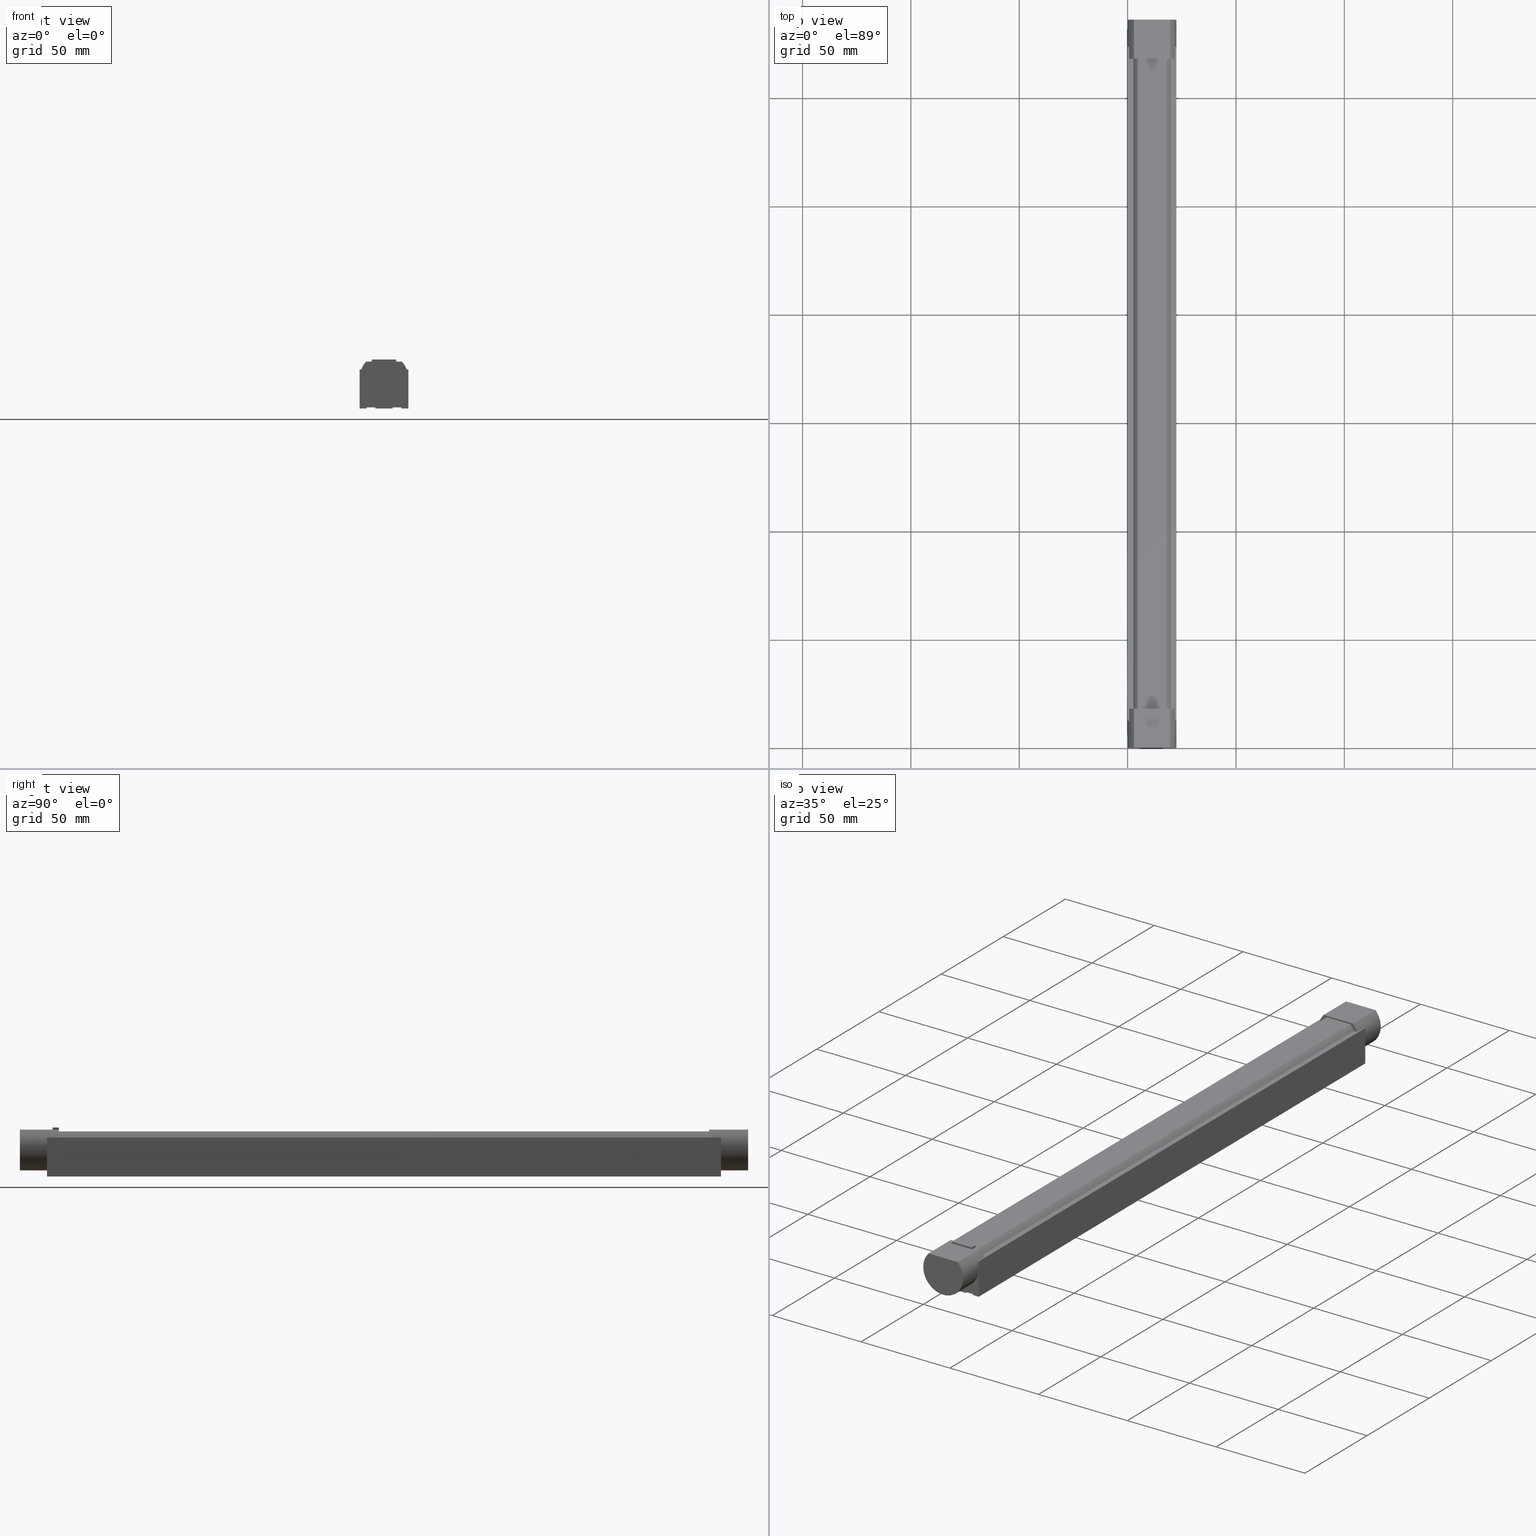
[diagram: canonical four-view strip — front | top / right | iso, engineering-drawing reading convention]
A machine part, canonical four-view strip (front | top / right | iso — engineering-drawing reading convention). The complete STEP part file that produces these views, byte-faithful:
ISO-10303-21;
HEADER;
FILE_DESCRIPTION(('Creo Elements/Direct Modeling STEP Export'),'2;1');
FILE_NAME(
'C:/temp/JobSpoolerServerData/JobServer Files/bf29cfd9-845c-40ce-b412-e1
f14f30335e/work/output/model.stp','2019-07-30T20:00:19',(''),(''),
'Creo Elements/Direct Modeling STEP processor for AP214 (Solid Model)',
'Creo Elements/Direct Modeling 20.1A  29-Sep-2018 (C) Parametric Technol
ogy GmbH','');
FILE_SCHEMA(('AUTOMOTIVE_DESIGN { 1 0 10303 214 1 1 1 1 }'));
ENDSEC;
DATA;
#10=CARTESIAN_POINT('',(106.55,-10.05,-22.));
#20=DIRECTION('',(0.,0.,1.));
#30=DIRECTION('',(1.,0.,0.));
#40=AXIS2_PLACEMENT_3D('',#10,#20,#30);
#50=PLANE('',#40);
#60=CARTESIAN_POINT('',(12.5,0.,-22.));
#70=DIRECTION('',(0.,-1.,0.));
#80=VECTOR('',#70,1.);
#90=LINE('',#60,#80);
#100=CARTESIAN_POINT('',(12.5,11.25,-22.));
#110=VERTEX_POINT('',#100);
#120=CARTESIAN_POINT('',(12.5,10.514041296652,-22.));
#130=VERTEX_POINT('',#120);
#140=EDGE_CURVE('',#110,#130,#90,.T.);
#150=ORIENTED_EDGE('',*,*,#140,.F.);
#160=CARTESIAN_POINT('',(13.7200045691454,10.514041296652,-22.));
#170=DIRECTION('',(-1.,0.,0.));
#180=VECTOR('',#170,1.);
#190=LINE('',#160,#180);
#200=CARTESIAN_POINT('',(18.0000000000001,10.514041296652,-22.));
#210=VERTEX_POINT('',#200);
#220=EDGE_CURVE('',#210,#130,#190,.T.);
#230=ORIENTED_EDGE('',*,*,#220,.T.);
#240=CARTESIAN_POINT('',(18.0000000000001,0.,-22.));
#250=DIRECTION('',(0.,1.,0.));
#260=VECTOR('',#250,1.);
#270=LINE('',#240,#260);
#280=CARTESIAN_POINT('',(18.0000000000001,8.61684396980705,-22.));
#290=VERTEX_POINT('',#280);
#300=EDGE_CURVE('',#290,#210,#270,.T.);
#310=ORIENTED_EDGE('',*,*,#300,.T.);
#320=CARTESIAN_POINT('',(98.,8.61684396980704,-22.));
#330=DIRECTION('',(-1.,0.,0.));
#340=VECTOR('',#330,1.);
#350=LINE('',#320,#340);
#360=CARTESIAN_POINT('',(318.,8.61684396980704,-22.));
#370=VERTEX_POINT('',#360);
#380=EDGE_CURVE('',#370,#290,#350,.T.);
#390=ORIENTED_EDGE('',*,*,#380,.T.);
#400=CARTESIAN_POINT('',(318.,0.,-22.));
#410=DIRECTION('',(0.,-1.,0.));
#420=VECTOR('',#410,1.);
#430=LINE('',#400,#420);
#440=CARTESIAN_POINT('',(318.,10.514041296652,-22.));
#450=VERTEX_POINT('',#440);
#460=EDGE_CURVE('',#450,#370,#430,.T.);
#470=ORIENTED_EDGE('',*,*,#460,.T.);
#480=CARTESIAN_POINT('',(322.279995430855,10.514041296652,-22.));
#490=DIRECTION('',(1.,0.,0.));
#500=VECTOR('',#490,1.);
#510=LINE('',#480,#500);
#520=CARTESIAN_POINT('',(323.5,10.514041296652,-22.));
#530=VERTEX_POINT('',#520);
#540=EDGE_CURVE('',#450,#530,#510,.T.);
#550=ORIENTED_EDGE('',*,*,#540,.F.);
#560=CARTESIAN_POINT('',(323.5,0.,-22.));
#570=DIRECTION('',(0.,-1.,0.));
#580=VECTOR('',#570,1.);
#590=LINE('',#560,#580);
#600=CARTESIAN_POINT('',(323.5,11.25,-22.));
#610=VERTEX_POINT('',#600);
#620=EDGE_CURVE('',#610,#530,#590,.T.);
#630=ORIENTED_EDGE('',*,*,#620,.T.);
#640=CARTESIAN_POINT('',(0.,11.25,-22.));
#650=DIRECTION('',(-1.,0.,0.));
#660=VECTOR('',#650,1.);
#670=LINE('',#640,#660);
#680=EDGE_CURVE('',#610,#110,#670,.T.);
#690=ORIENTED_EDGE('',*,*,#680,.F.);
#700=EDGE_LOOP('',(#690,#630,#550,#470,#390,#310,#230,#150));
#710=FACE_OUTER_BOUND('',#700,.T.);
#720=ADVANCED_FACE('',(#710),#50,.F.);
#730=COLOUR_RGB('',0.647058844566345,0.647058844566345,0.647058844566345
);
#740=FILL_AREA_STYLE_COLOUR('',#730);
#750=FILL_AREA_STYLE('',(#740));
#760=SURFACE_STYLE_FILL_AREA(#750);
#770=SURFACE_SIDE_STYLE('',(#760));
#780=SURFACE_STYLE_USAGE(.BOTH.,#770);
#790=PRESENTATION_STYLE_ASSIGNMENT((#780));
#800=CARTESIAN_POINT('',(12.5,10.05,-20.8));
#810=DIRECTION('',(1.,-0.,0.));
#820=DIRECTION('',(0.,0.,-1.));
#830=AXIS2_PLACEMENT_3D('',#800,#810,#820);
#840=PLANE('',#830);
#850=CARTESIAN_POINT('',(12.5,-11.25,0.));
#860=DIRECTION('',(0.,0.,1.));
#870=VECTOR('',#860,1.);
#880=LINE('',#850,#870);
#890=CARTESIAN_POINT('',(12.5,-11.25,-22.));
#900=VERTEX_POINT('',#890);
#910=CARTESIAN_POINT('',(12.5,-11.2492250572074,-18.));
#920=VERTEX_POINT('',#910);
#930=EDGE_CURVE('',#900,#920,#880,.T.);
#940=ORIENTED_EDGE('',*,*,#930,.T.);
#950=CARTESIAN_POINT('',(12.5,-10.514041296652,-22.));
#960=VERTEX_POINT('',#950);
#970=EDGE_CURVE('',#960,#900,#90,.T.);
#980=ORIENTED_EDGE('',*,*,#970,.T.);
#990=CARTESIAN_POINT('',(12.5,0.,-18.));
#1000=DIRECTION('',(-1.,0.,0.));
#1010=DIRECTION('',(0.,0.,1.));
#1020=AXIS2_PLACEMENT_3D('',#990,#1000,#1010);
#1030=CIRCLE('',#1020,11.2492250572074);
#1040=EDGE_CURVE('',#960,#920,#1030,.T.);
#1050=ORIENTED_EDGE('',*,*,#1040,.F.);
#1060=EDGE_LOOP('',(#1050,#980,#940));
#1070=FACE_OUTER_BOUND('',#1060,.T.);
#1080=ADVANCED_FACE('',(#1070),#840,.F.);
#1090=COLOUR_RGB('',0.647058844566345,0.647058844566345,
0.647058844566345);
#1100=FILL_AREA_STYLE_COLOUR('',#1090);
#1110=FILL_AREA_STYLE('',(#1100));
#1120=SURFACE_STYLE_FILL_AREA(#1110);
#1130=SURFACE_SIDE_STYLE('',(#1120));
#1140=SURFACE_STYLE_USAGE(.BOTH.,#1130);
#1150=PRESENTATION_STYLE_ASSIGNMENT((#1140));
#1160=CARTESIAN_POINT('',(18.,5.65,-22.));
#1170=DIRECTION('',(0.,1.,0.));
#1180=DIRECTION('',(0.,0.,1.));
#1190=AXIS2_PLACEMENT_3D('',#1160,#1170,#1180);
#1200=PLANE('',#1190);
#1210=CARTESIAN_POINT('',(15.1,5.65,-26.6));
#1220=DIRECTION('',(0.,0.,1.));
#1230=VECTOR('',#1220,1.);
#1240=LINE('',#1210,#1230);
#1250=CARTESIAN_POINT('',(15.1,5.65,-26.6));
#1260=VERTEX_POINT('',#1250);
#1270=CARTESIAN_POINT('',(15.1,5.65,-25.6039554467767));
#1280=VERTEX_POINT('',#1270);
#1290=EDGE_CURVE('',#1260,#1280,#1240,.T.);
#1300=ORIENTED_EDGE('',*,*,#1290,.T.);
#1310=CARTESIAN_POINT('',(15.1,5.65,-26.6));
#1320=DIRECTION('',(1.,0.,0.));
#1330=VECTOR('',#1320,1.);
#1340=LINE('',#1310,#1330);
#1350=CARTESIAN_POINT('',(18.,5.65,-26.6));
#1360=VERTEX_POINT('',#1350);
#1370=EDGE_CURVE('',#1260,#1360,#1340,.T.);
#1380=ORIENTED_EDGE('',*,*,#1370,.F.);
#1390=CARTESIAN_POINT('',(18.,5.65,-26.6));
#1400=DIRECTION('',(0.,0.,1.));
#1410=VECTOR('',#1400,1.);
#1420=LINE('',#1390,#1410);
#1430=CARTESIAN_POINT('',(18.0000000000001,5.65,-25.6039554467767));
#1440=VERTEX_POINT('',#1430);
#1450=EDGE_CURVE('',#1360,#1440,#1420,.T.);
#1460=ORIENTED_EDGE('',*,*,#1450,.F.);
#1470=CARTESIAN_POINT('',(0.,5.65,-25.6039554467767));
#1480=DIRECTION('',(-1.,0.,0.));
#1490=VECTOR('',#1480,1.);
#1500=LINE('',#1470,#1490);
#1510=EDGE_CURVE('',#1440,#1280,#1500,.T.);
#1520=ORIENTED_EDGE('',*,*,#1510,.F.);
#1530=EDGE_LOOP('',(#1520,#1460,#1380,#1300));
#1540=FACE_OUTER_BOUND('',#1530,.T.);
#1550=ADVANCED_FACE('',(#1540),#1200,.T.);
#1560=COLOUR_RGB('',0.313725501298904,0.313725501298904,
0.313725501298904);
#1570=FILL_AREA_STYLE_COLOUR('',#1560);
#1580=FILL_AREA_STYLE('',(#1570));
#1590=SURFACE_STYLE_FILL_AREA(#1580);
#1600=SURFACE_SIDE_STYLE('',(#1590));
#1610=SURFACE_STYLE_USAGE(.BOTH.,#1600);
#1620=PRESENTATION_STYLE_ASSIGNMENT((#1610));
#1630=CARTESIAN_POINT('',(12.5,11.2492250572074,-18.));
#1640=VERTEX_POINT('',#1630);
#1650=EDGE_CURVE('',#1640,#130,#1030,.T.);
#1660=ORIENTED_EDGE('',*,*,#1650,.F.);
#1670=ORIENTED_EDGE('',*,*,#140,.T.);
#1680=CARTESIAN_POINT('',(12.5,11.25,0.));
#1690=DIRECTION('',(0.,0.,-1.));
#1700=VECTOR('',#1690,1.);
#1710=LINE('',#1680,#1700);
#1720=EDGE_CURVE('',#1640,#110,#1710,.T.);
#1730=ORIENTED_EDGE('',*,*,#1720,.T.);
#1740=EDGE_LOOP('',(#1730,#1670,#1660));
#1750=FACE_OUTER_BOUND('',#1740,.T.);
#1760=ADVANCED_FACE('',(#1750),#840,.F.);
#1770=COLOUR_RGB('',0.647058844566345,0.647058844566345,
0.647058844566345);
#1780=FILL_AREA_STYLE_COLOUR('',#1770);
#1790=FILL_AREA_STYLE('',(#1780));
#1800=SURFACE_STYLE_FILL_AREA(#1790);
#1810=SURFACE_SIDE_STYLE('',(#1800));
#1820=SURFACE_STYLE_USAGE(.BOTH.,#1810);
#1830=PRESENTATION_STYLE_ASSIGNMENT((#1820));
#1840=CARTESIAN_POINT('',(15.1,-5.65,-22.));
#1850=DIRECTION('',(0.,-1.,0.));
#1860=DIRECTION('',(0.,0.,-1.));
#1870=AXIS2_PLACEMENT_3D('',#1840,#1850,#1860);
#1880=PLANE('',#1870);
#1890=CARTESIAN_POINT('',(18.,-5.65,-26.6));
#1900=DIRECTION('',(0.,0.,1.));
#1910=VECTOR('',#1900,1.);
#1920=LINE('',#1890,#1910);
#1930=CARTESIAN_POINT('',(18.,-5.65,-26.6));
#1940=VERTEX_POINT('',#1930);
#1950=CARTESIAN_POINT('',(18.,-5.65,-25.6039554467767));
#1960=VERTEX_POINT('',#1950);
#1970=EDGE_CURVE('',#1940,#1960,#1920,.T.);
#1980=ORIENTED_EDGE('',*,*,#1970,.T.);
#1990=CARTESIAN_POINT('',(15.1,-5.65,-26.6));
#2000=DIRECTION('',(1.,0.,0.));
#2010=VECTOR('',#2000,1.);
#2020=LINE('',#1990,#2010);
#2030=CARTESIAN_POINT('',(15.1,-5.65,-26.6));
#2040=VERTEX_POINT('',#2030);
#2050=EDGE_CURVE('',#2040,#1940,#2020,.T.);
#2060=ORIENTED_EDGE('',*,*,#2050,.T.);
#2070=CARTESIAN_POINT('',(15.1,-5.65,-26.6));
#2080=DIRECTION('',(0.,0.,1.));
#2090=VECTOR('',#2080,1.);
#2100=LINE('',#2070,#2090);
#2110=CARTESIAN_POINT('',(15.1,-5.65,-25.6039554467767));
#2120=VERTEX_POINT('',#2110);
#2130=EDGE_CURVE('',#2040,#2120,#2100,.T.);
#2140=ORIENTED_EDGE('',*,*,#2130,.F.);
#2150=CARTESIAN_POINT('',(0.,-5.65,-25.6039554467767));
#2160=DIRECTION('',(1.,0.,0.));
#2170=VECTOR('',#2160,1.);
#2180=LINE('',#2150,#2170);
#2190=EDGE_CURVE('',#2120,#1960,#2180,.T.);
#2200=ORIENTED_EDGE('',*,*,#2190,.F.);
#2210=EDGE_LOOP('',(#2200,#2140,#2060,#1980));
#2220=FACE_OUTER_BOUND('',#2210,.T.);
#2230=ADVANCED_FACE('',(#2220),#1880,.T.);
#2240=COLOUR_RGB('',0.313725501298904,0.313725501298904,
0.313725501298904);
#2250=FILL_AREA_STYLE_COLOUR('',#2240);
#2260=FILL_AREA_STYLE('',(#2250));
#2270=SURFACE_STYLE_FILL_AREA(#2260);
#2280=SURFACE_SIDE_STYLE('',(#2270));
#2290=SURFACE_STYLE_USAGE(.BOTH.,#2280);
#2300=PRESENTATION_STYLE_ASSIGNMENT((#2290));
#2310=CARTESIAN_POINT('',(106.55,11.25,-20.8));
#2320=DIRECTION('',(0.,-1.,0.));
#2330=DIRECTION('',(0.,0.,-1.));
#2340=AXIS2_PLACEMENT_3D('',#2310,#2320,#2330);
#2350=PLANE('',#2340);
#2360=CARTESIAN_POINT('',(323.5,11.25,0.));
#2370=DIRECTION('',(0.,0.,-1.));
#2380=VECTOR('',#2370,1.);
#2390=LINE('',#2360,#2380);
#2400=CARTESIAN_POINT('',(323.5,11.25,-18.));
#2410=VERTEX_POINT('',#2400);
#2420=EDGE_CURVE('',#2410,#610,#2390,.T.);
#2430=ORIENTED_EDGE('',*,*,#2420,.T.);
#2440=CARTESIAN_POINT('',(323.5,11.25,-4.));
#2450=VERTEX_POINT('',#2440);
#2460=EDGE_CURVE('',#2450,#2410,#2390,.T.);
#2470=ORIENTED_EDGE('',*,*,#2460,.T.);
#2480=CARTESIAN_POINT('',(0.,11.25,-4.));
#2490=DIRECTION('',(-1.,0.,0.));
#2500=VECTOR('',#2490,1.);
#2510=LINE('',#2480,#2500);
#2520=CARTESIAN_POINT('',(12.5,11.25,-4.));
#2530=VERTEX_POINT('',#2520);
#2540=EDGE_CURVE('',#2450,#2530,#2510,.T.);
#2550=ORIENTED_EDGE('',*,*,#2540,.F.);
#2560=EDGE_CURVE('',#2530,#1640,#1710,.T.);
#2570=ORIENTED_EDGE('',*,*,#2560,.F.);
#2580=ORIENTED_EDGE('',*,*,#1720,.F.);
#2590=ORIENTED_EDGE('',*,*,#680,.T.);
#2600=EDGE_LOOP('',(#2590,#2580,#2570,#2550,#2470,#2430));
#2610=FACE_OUTER_BOUND('',#2600,.T.);
#2620=ADVANCED_FACE('',(#2610),#2350,.F.);
#2630=COLOUR_RGB('',0.647058844566345,0.647058844566345,
0.647058844566345);
#2640=FILL_AREA_STYLE_COLOUR('',#2630);
#2650=FILL_AREA_STYLE('',(#2640));
#2660=SURFACE_STYLE_FILL_AREA(#2650);
#2670=SURFACE_SIDE_STYLE('',(#2660));
#2680=SURFACE_STYLE_USAGE(.BOTH.,#2670);
#2690=PRESENTATION_STYLE_ASSIGNMENT((#2680));
#2700=CARTESIAN_POINT('',(106.55,-11.25,-4.50000000000001));
#2710=DIRECTION('',(0.,1.,0.));
#2720=DIRECTION('',(0.,0.,1.));
#2730=AXIS2_PLACEMENT_3D('',#2700,#2710,#2720);
#2740=PLANE('',#2730);
#2750=ORIENTED_EDGE('',*,*,#930,.F.);
#2760=CARTESIAN_POINT('',(12.5,-11.25,-4.));
#2770=VERTEX_POINT('',#2760);
#2780=EDGE_CURVE('',#920,#2770,#880,.T.);
#2790=ORIENTED_EDGE('',*,*,#2780,.F.);
#2800=CARTESIAN_POINT('',(0.,-11.25,-4.));
#2810=DIRECTION('',(-1.,0.,0.));
#2820=VECTOR('',#2810,1.);
#2830=LINE('',#2800,#2820);
#2840=CARTESIAN_POINT('',(323.5,-11.25,-4.));
#2850=VERTEX_POINT('',#2840);
#2860=EDGE_CURVE('',#2850,#2770,#2830,.T.);
#2870=ORIENTED_EDGE('',*,*,#2860,.T.);
#2880=CARTESIAN_POINT('',(323.5,-11.25,0.));
#2890=DIRECTION('',(0.,0.,1.));
#2900=VECTOR('',#2890,1.);
#2910=LINE('',#2880,#2900);
#2920=CARTESIAN_POINT('',(323.5,-11.25,-18.));
#2930=VERTEX_POINT('',#2920);
#2940=EDGE_CURVE('',#2930,#2850,#2910,.T.);
#2950=ORIENTED_EDGE('',*,*,#2940,.T.);
#2960=CARTESIAN_POINT('',(323.5,-11.25,-22.));
#2970=VERTEX_POINT('',#2960);
#2980=EDGE_CURVE('',#2970,#2930,#2910,.T.);
#2990=ORIENTED_EDGE('',*,*,#2980,.T.);
#3000=CARTESIAN_POINT('',(0.,-11.25,-22.));
#3010=DIRECTION('',(-1.,0.,0.));
#3020=VECTOR('',#3010,1.);
#3030=LINE('',#3000,#3020);
#3040=EDGE_CURVE('',#2970,#900,#3030,.T.);
#3050=ORIENTED_EDGE('',*,*,#3040,.F.);
#3060=EDGE_LOOP('',(#3050,#2990,#2950,#2870,#2790,#2750));
#3070=FACE_OUTER_BOUND('',#3060,.T.);
#3080=ADVANCED_FACE('',(#3070),#2740,.F.);
#3090=COLOUR_RGB('',0.647058844566345,0.647058844566345,
0.647058844566345);
#3100=FILL_AREA_STYLE_COLOUR('',#3090);
#3110=FILL_AREA_STYLE('',(#3100));
#3120=SURFACE_STYLE_FILL_AREA(#3110);
#3130=SURFACE_SIDE_STYLE('',(#3120));
#3140=SURFACE_STYLE_USAGE(.BOTH.,#3130);
#3150=PRESENTATION_STYLE_ASSIGNMENT((#3140));
#3160=CARTESIAN_POINT('',(1.73472347597681E-15,0.,-16.1773651947847));
#3170=DIRECTION('',(1.,-0.,0.));
#3180=DIRECTION('',(0.,0.,-1.));
#3190=AXIS2_PLACEMENT_3D('',#3160,#3170,#3180);
#3200=PLANE('',#3190);
#3210=CARTESIAN_POINT('',(1.77635683940025E-15,-8.2900498159624,
-25.6039554467767));
#3220=DIRECTION('',(0.,1.,-1.49993041680634E-15));
#3230=VECTOR('',#3220,1.);
#3240=LINE('',#3210,#3230);
#3250=CARTESIAN_POINT('',(1.77635683940025E-15,-8.29004981596239,
-25.6039554467767));
#3260=VERTEX_POINT('',#3250);
#3270=CARTESIAN_POINT('',(1.73472347597681E-15,8.29004981596238,
-25.6039554467767));
#3280=VERTEX_POINT('',#3270);
#3290=EDGE_CURVE('',#3260,#3280,#3240,.T.);
#3300=ORIENTED_EDGE('',*,*,#3290,.F.);
#3310=CARTESIAN_POINT('',(1.95399252334028E-14,0.,-18.));
#3320=DIRECTION('',(-1.,0.,0.));
#3330=DIRECTION('',(0.,-0.736944080485875,-0.675953713087537));
#3340=AXIS2_PLACEMENT_3D('',#3310,#3320,#3330);
#3350=CIRCLE('',#3340,11.2492250572074);
#3360=EDGE_CURVE('',#3260,#3280,#3350,.T.);
#3370=ORIENTED_EDGE('',*,*,#3360,.T.);
#3380=EDGE_LOOP('',(#3370,#3300));
#3390=FACE_OUTER_BOUND('',#3380,.T.);
#3400=ADVANCED_FACE('',(#3390),#3200,.F.);
#3410=COLOUR_RGB('',0.313725501298904,0.313725501298904,
0.313725501298904);
#3420=FILL_AREA_STYLE_COLOUR('',#3410);
#3430=FILL_AREA_STYLE('',(#3420));
#3440=SURFACE_STYLE_FILL_AREA(#3430);
#3450=SURFACE_SIDE_STYLE('',(#3440));
#3460=SURFACE_STYLE_USAGE(.BOTH.,#3450);
#3470=PRESENTATION_STYLE_ASSIGNMENT((#3460));
#3480=CARTESIAN_POINT('',(183.5,-11.25,-4.));
#3490=DIRECTION('',(-0.,-0.,-1.));
#3500=DIRECTION('',(0.,-1.,0.));
#3510=AXIS2_PLACEMENT_3D('',#3480,#3490,#3500);
#3520=PLANE('',#3510);
#3530=CARTESIAN_POINT('',(323.5,0.,-4.));
#3540=DIRECTION('',(0.,1.,0.));
#3550=VECTOR('',#3540,1.);
#3560=LINE('',#3530,#3550);
#3570=CARTESIAN_POINT('',(323.5,-8.,-4.));
#3580=VERTEX_POINT('',#3570);
#3590=EDGE_CURVE('',#2850,#3580,#3560,.T.);
#3600=ORIENTED_EDGE('',*,*,#3590,.T.);
#3610=ORIENTED_EDGE('',*,*,#2860,.F.);
#3620=CARTESIAN_POINT('',(12.5,0.,-4.));
#3630=DIRECTION('',(0.,-1.,0.));
#3640=VECTOR('',#3630,1.);
#3650=LINE('',#3620,#3640);
#3660=CARTESIAN_POINT('',(12.5,-8.,-4.));
#3670=VERTEX_POINT('',#3660);
#3680=EDGE_CURVE('',#3670,#2770,#3650,.T.);
#3690=ORIENTED_EDGE('',*,*,#3680,.T.);
#3700=CARTESIAN_POINT('',(0.,-8.,-4.));
#3710=DIRECTION('',(-1.,0.,0.));
#3720=VECTOR('',#3710,1.);
#3730=LINE('',#3700,#3720);
#3740=EDGE_CURVE('',#3580,#3670,#3730,.T.);
#3750=ORIENTED_EDGE('',*,*,#3740,.T.);
#3760=EDGE_LOOP('',(#3750,#3690,#3610,#3600));
#3770=FACE_OUTER_BOUND('',#3760,.T.);
#3780=ADVANCED_FACE('',(#3770),#3520,.F.);
#3790=COLOUR_RGB('',0.647058844566345,0.647058844566345,
0.647058844566345);
#3800=FILL_AREA_STYLE_COLOUR('',#3790);
#3810=FILL_AREA_STYLE('',(#3800));
#3820=SURFACE_STYLE_FILL_AREA(#3810);
#3830=SURFACE_SIDE_STYLE('',(#3820));
#3840=SURFACE_STYLE_USAGE(.BOTH.,#3830);
#3850=PRESENTATION_STYLE_ASSIGNMENT((#3840));
#3860=CARTESIAN_POINT('',(183.5,-4.00000000000001,-4.));
#3870=DIRECTION('',(-0.,-0.,-1.));
#3880=DIRECTION('',(0.,-1.,0.));
#3890=AXIS2_PLACEMENT_3D('',#3860,#3870,#3880);
#3900=PLANE('',#3890);
#3910=CARTESIAN_POINT('',(323.5,-3.75,-4.));
#3920=DIRECTION('',(0.,1.,0.));
#3930=VECTOR('',#3920,1.);
#3940=LINE('',#3910,#3930);
#3950=CARTESIAN_POINT('',(323.5,-4.00000000000001,-4.));
#3960=VERTEX_POINT('',#3950);
#3970=CARTESIAN_POINT('',(323.5,4.,-4.));
#3980=VERTEX_POINT('',#3970);
#3990=EDGE_CURVE('',#3960,#3980,#3940,.T.);
#4000=ORIENTED_EDGE('',*,*,#3990,.T.);
#4010=CARTESIAN_POINT('',(0.,-4.00000000000001,-4.));
#4020=DIRECTION('',(-1.,0.,0.));
#4030=VECTOR('',#4020,1.);
#4040=LINE('',#4010,#4030);
#4050=CARTESIAN_POINT('',(12.5,-4.00000000000001,-4.));
#4060=VERTEX_POINT('',#4050);
#4070=EDGE_CURVE('',#3960,#4060,#4040,.T.);
#4080=ORIENTED_EDGE('',*,*,#4070,.F.);
#4090=CARTESIAN_POINT('',(12.5,0.,-4.));
#4100=DIRECTION('',(0.,-1.,0.));
#4110=VECTOR('',#4100,1.);
#4120=LINE('',#4090,#4110);
#4130=CARTESIAN_POINT('',(12.5,4.,-4.));
#4140=VERTEX_POINT('',#4130);
#4150=EDGE_CURVE('',#4140,#4060,#4120,.T.);
#4160=ORIENTED_EDGE('',*,*,#4150,.T.);
#4170=CARTESIAN_POINT('',(0.,4.,-4.));
#4180=DIRECTION('',(-1.,0.,0.));
#4190=VECTOR('',#4180,1.);
#4200=LINE('',#4170,#4190);
#4210=EDGE_CURVE('',#3980,#4140,#4200,.T.);
#4220=ORIENTED_EDGE('',*,*,#4210,.T.);
#4230=EDGE_LOOP('',(#4220,#4160,#4080,#4000));
#4240=FACE_OUTER_BOUND('',#4230,.T.);
#4250=CARTESIAN_POINT('',(23.0000000000001,-3.46944695195361E-15,-4.));
#4260=DIRECTION('',(0.,0.,-1.));
#4270=DIRECTION('',(-1.,-2.3970724395316E-16,0.));
#4280=AXIS2_PLACEMENT_3D('',#4250,#4260,#4270);
#4290=CIRCLE('',#4280,2.2);
#4300=CARTESIAN_POINT('',(25.2000000000001,-2.67266871944424E-15,-4.));
#4310=VERTEX_POINT('',#4300);
#4320=CARTESIAN_POINT('',(20.8000000000001,-3.99680288865056E-15,-4.));
#4330=VERTEX_POINT('',#4320);
#4340=EDGE_CURVE('',#4310,#4330,#4290,.T.);
#4350=ORIENTED_EDGE('',*,*,#4340,.T.);
#4360=EDGE_CURVE('',#4330,#4310,#4290,.T.);
#4370=ORIENTED_EDGE('',*,*,#4360,.T.);
#4380=EDGE_LOOP('',(#4370,#4350));
#4390=FACE_BOUND('',#4380,.T.);
#4400=CARTESIAN_POINT('',(313.,-3.46944695195361E-15,-4.));
#4410=DIRECTION('',(0.,0.,-1.));
#4420=DIRECTION('',(1.,-3.78485122031329E-17,0.));
#4430=AXIS2_PLACEMENT_3D('',#4400,#4410,#4420);
#4440=CIRCLE('',#4430,2.2);
#4450=CARTESIAN_POINT('',(315.2,-3.5527136788005E-15,-4.));
#4460=VERTEX_POINT('',#4450);
#4470=CARTESIAN_POINT('',(310.8,-3.65560252091914E-15,-4.));
#4480=VERTEX_POINT('',#4470);
#4490=EDGE_CURVE('',#4460,#4480,#4440,.T.);
#4500=ORIENTED_EDGE('',*,*,#4490,.T.);
#4510=EDGE_CURVE('',#4480,#4460,#4440,.T.);
#4520=ORIENTED_EDGE('',*,*,#4510,.T.);
#4530=EDGE_LOOP('',(#4520,#4500));
#4540=FACE_BOUND('',#4530,.T.);
#4550=ADVANCED_FACE('',(#4240,#4390,#4540),#3900,.F.);
#4560=COLOUR_RGB('',0.647058844566345,0.647058844566345,
0.647058844566345);
#4570=FILL_AREA_STYLE_COLOUR('',#4560);
#4580=FILL_AREA_STYLE('',(#4570));
#4590=SURFACE_STYLE_FILL_AREA(#4580);
#4600=SURFACE_SIDE_STYLE('',(#4590));
#4610=SURFACE_STYLE_USAGE(.BOTH.,#4600);
#4620=PRESENTATION_STYLE_ASSIGNMENT((#4610));
#4630=ORIENTED_EDGE('',*,*,#2560,.T.);
#4640=CARTESIAN_POINT('',(12.5,0.,-4.));
#4650=DIRECTION('',(0.,-1.,0.));
#4660=VECTOR('',#4650,1.);
#4670=LINE('',#4640,#4660);
#4680=CARTESIAN_POINT('',(12.5,7.99999999999999,-4.));
#4690=VERTEX_POINT('',#4680);
#4700=EDGE_CURVE('',#2530,#4690,#4670,.T.);
#4710=ORIENTED_EDGE('',*,*,#4700,.F.);
#4720=CARTESIAN_POINT('',(12.5,7.99999999999997,0.));
#4730=DIRECTION('',(0.,4.33257765707378E-15,-1.));
#4740=VECTOR('',#4730,1.);
#4750=LINE('',#4720,#4740);
#4760=CARTESIAN_POINT('',(12.5,7.99999999999999,-4.50000000000001));
#4770=VERTEX_POINT('',#4760);
#4780=EDGE_CURVE('',#4690,#4770,#4750,.T.);
#4790=ORIENTED_EDGE('',*,*,#4780,.F.);
#4800=CARTESIAN_POINT('',(12.5,0.,-4.50000000000001));
#4810=DIRECTION('',(0.,-1.,0.));
#4820=VECTOR('',#4810,1.);
#4830=LINE('',#4800,#4820);
#4840=CARTESIAN_POINT('',(12.5,4.,-4.50000000000001));
#4850=VERTEX_POINT('',#4840);
#4860=EDGE_CURVE('',#4770,#4850,#4830,.T.);
#4870=ORIENTED_EDGE('',*,*,#4860,.F.);
#4880=CARTESIAN_POINT('',(12.5,4.,0.));
#4890=DIRECTION('',(0.,0.,1.));
#4900=VECTOR('',#4890,1.);
#4910=LINE('',#4880,#4900);
#4920=EDGE_CURVE('',#4850,#4140,#4910,.T.);
#4930=ORIENTED_EDGE('',*,*,#4920,.F.);
#4940=ORIENTED_EDGE('',*,*,#4150,.F.);
#4950=CARTESIAN_POINT('',(12.5,-4.00000000000003,0.));
#4960=DIRECTION('',(0.,4.03717463500056E-15,-1.));
#4970=VECTOR('',#4960,1.);
#4980=LINE('',#4950,#4970);
#4990=CARTESIAN_POINT('',(12.5,-4.00000000000001,-4.50000000000001));
#5000=VERTEX_POINT('',#4990);
#5010=EDGE_CURVE('',#4060,#5000,#4980,.T.);
#5020=ORIENTED_EDGE('',*,*,#5010,.F.);
#5030=CARTESIAN_POINT('',(12.5,0.,-4.50000000000001));
#5040=DIRECTION('',(0.,-1.,0.));
#5050=VECTOR('',#5040,1.);
#5060=LINE('',#5030,#5050);
#5070=CARTESIAN_POINT('',(12.5,-8.,-4.50000000000001));
#5080=VERTEX_POINT('',#5070);
#5090=EDGE_CURVE('',#5000,#5080,#5060,.T.);
#5100=ORIENTED_EDGE('',*,*,#5090,.F.);
#5110=CARTESIAN_POINT('',(12.5,-8.,0.));
#5120=DIRECTION('',(0.,0.,1.));
#5130=VECTOR('',#5120,1.);
#5140=LINE('',#5110,#5130);
#5150=EDGE_CURVE('',#5080,#3670,#5140,.T.);
#5160=ORIENTED_EDGE('',*,*,#5150,.F.);
#5170=ORIENTED_EDGE('',*,*,#3680,.F.);
#5180=ORIENTED_EDGE('',*,*,#2780,.T.);
#5190=EDGE_CURVE('',#920,#1640,#1030,.T.);
#5200=ORIENTED_EDGE('',*,*,#5190,.F.);
#5210=EDGE_LOOP('',(#5200,#5180,#5170,#5160,#5100,#5020,#4940,#4930,
#4870,#4790,#4710,#4630));
#5220=FACE_OUTER_BOUND('',#5210,.T.);
#5230=ADVANCED_FACE('',(#5220),#840,.F.);
#5240=COLOUR_RGB('',0.647058844566345,0.647058844566345,
0.647058844566345);
#5250=FILL_AREA_STYLE_COLOUR('',#5240);
#5260=FILL_AREA_STYLE('',(#5250));
#5270=SURFACE_STYLE_FILL_AREA(#5260);
#5280=SURFACE_SIDE_STYLE('',(#5270));
#5290=SURFACE_STYLE_USAGE(.BOTH.,#5280);
#5300=PRESENTATION_STYLE_ASSIGNMENT((#5290));
#5310=CARTESIAN_POINT('',(18.,5.65,-26.6));
#5320=DIRECTION('',(0.,0.,-1.));
#5330=DIRECTION('',(-1.,0.,0.));
#5340=AXIS2_PLACEMENT_3D('',#5310,#5320,#5330);
#5350=PLANE('',#5340);
#5360=CARTESIAN_POINT('',(15.1,-5.65,-26.6));
#5370=DIRECTION('',(0.,1.,0.));
#5380=VECTOR('',#5370,1.);
#5390=LINE('',#5360,#5380);
#5400=EDGE_CURVE('',#2040,#1260,#5390,.T.);
#5410=ORIENTED_EDGE('',*,*,#5400,.T.);
#5420=ORIENTED_EDGE('',*,*,#2050,.F.);
#5430=CARTESIAN_POINT('',(18.,-5.65,-26.6));
#5440=DIRECTION('',(0.,1.,0.));
#5450=VECTOR('',#5440,1.);
#5460=LINE('',#5430,#5450);
#5470=EDGE_CURVE('',#1940,#1360,#5460,.T.);
#5480=ORIENTED_EDGE('',*,*,#5470,.F.);
#5490=ORIENTED_EDGE('',*,*,#1370,.T.);
#5500=EDGE_LOOP('',(#5490,#5480,#5420,#5410));
#5510=FACE_OUTER_BOUND('',#5500,.T.);
#5520=ADVANCED_FACE('',(#5510),#5350,.T.);
#5530=COLOUR_RGB('',0.313725501298904,0.313725501298904,
0.313725501298904);
#5540=FILL_AREA_STYLE_COLOUR('',#5530);
#5550=FILL_AREA_STYLE('',(#5540));
#5560=SURFACE_STYLE_FILL_AREA(#5550);
#5570=SURFACE_SIDE_STYLE('',(#5560));
#5580=SURFACE_STYLE_USAGE(.BOTH.,#5570);
#5590=PRESENTATION_STYLE_ASSIGNMENT((#5580));
#5600=CARTESIAN_POINT('',(18.,0.,-18.));
#5610=DIRECTION('',(-1.,0.,0.));
#5620=DIRECTION('',(0.,0.,1.));
#5630=AXIS2_PLACEMENT_3D('',#5600,#5610,#5620);
#5640=PLANE('',#5630);
#5650=CARTESIAN_POINT('',(18.0000000000001,0.,-18.));
#5660=DIRECTION('',(-1.,0.,0.));
#5670=DIRECTION('',(0.,0.,1.));
#5680=AXIS2_PLACEMENT_3D('',#5650,#5660,#5670);
#5690=CIRCLE('',#5680,9.5);
#5700=CARTESIAN_POINT('',(18.0000000000001,6.63400331624879,-24.8));
#5710=VERTEX_POINT('',#5700);
#5720=EDGE_CURVE('',#290,#5710,#5690,.T.);
#5730=ORIENTED_EDGE('',*,*,#5720,.T.);
#5740=ORIENTED_EDGE('',*,*,#300,.F.);
#5750=CARTESIAN_POINT('',(18.0000000000001,0.,-18.));
#5760=DIRECTION('',(1.,0.,0.));
#5770=DIRECTION('',(0.,4.7372778934549E-16,1.));
#5780=AXIS2_PLACEMENT_3D('',#5750,#5760,#5770);
#5790=CIRCLE('',#5780,11.2492250572074);
#5800=CARTESIAN_POINT('',(18.0000000000001,8.29004981596238,
-25.6039554467767));
#5810=VERTEX_POINT('',#5800);
#5820=EDGE_CURVE('',#5810,#210,#5790,.T.);
#5830=ORIENTED_EDGE('',*,*,#5820,.T.);
#5840=CARTESIAN_POINT('',(18.0000000000001,-8.29004981596238,
-25.6039554467767));
#5850=DIRECTION('',(0.,1.,0.));
#5860=VECTOR('',#5850,1.);
#5870=LINE('',#5840,#5860);
#5880=EDGE_CURVE('',#1440,#5810,#5870,.T.);
#5890=ORIENTED_EDGE('',*,*,#5880,.T.);
#5900=ORIENTED_EDGE('',*,*,#1450,.T.);
#5910=ORIENTED_EDGE('',*,*,#5470,.T.);
#5920=ORIENTED_EDGE('',*,*,#1970,.F.);
#5930=CARTESIAN_POINT('',(18.0000000000001,-8.29004981596239,
-25.6039554467767));
#5940=VERTEX_POINT('',#5930);
#5950=EDGE_CURVE('',#5940,#1960,#5870,.T.);
#5960=ORIENTED_EDGE('',*,*,#5950,.T.);
#5970=CARTESIAN_POINT('',(18.0000000000001,-10.514041296652,-22.));
#5980=VERTEX_POINT('',#5970);
#5990=EDGE_CURVE('',#5980,#5940,#5790,.T.);
#6000=ORIENTED_EDGE('',*,*,#5990,.T.);
#6010=CARTESIAN_POINT('',(18.0000000000001,-8.61684396980704,-22.));
#6020=VERTEX_POINT('',#6010);
#6030=EDGE_CURVE('',#5980,#6020,#270,.T.);
#6040=ORIENTED_EDGE('',*,*,#6030,.F.);
#6050=CARTESIAN_POINT('',(18.0000000000001,0.,-18.));
#6060=DIRECTION('',(-1.,0.,0.));
#6070=DIRECTION('',(0.,0.,1.));
#6080=AXIS2_PLACEMENT_3D('',#6050,#6060,#6070);
#6090=CIRCLE('',#6080,9.5);
#6100=CARTESIAN_POINT('',(18.0000000000001,-6.63400331624879,-24.8));
#6110=VERTEX_POINT('',#6100);
#6120=EDGE_CURVE('',#6110,#6020,#6090,.T.);
#6130=ORIENTED_EDGE('',*,*,#6120,.T.);
#6140=CARTESIAN_POINT('',(18.0000000000001,0.,-24.8));
#6150=DIRECTION('',(0.,-1.,0.));
#6160=VECTOR('',#6150,1.);
#6170=LINE('',#6140,#6160);
#6180=EDGE_CURVE('',#5710,#6110,#6170,.T.);
#6190=ORIENTED_EDGE('',*,*,#6180,.T.);
#6200=EDGE_LOOP('',(#6190,#6130,#6040,#6000,#5960,#5920,#5910,#5900,
#5890,#5830,#5740,#5730));
#6210=FACE_OUTER_BOUND('',#6200,.T.);
#6220=ADVANCED_FACE('',(#6210),#5640,.F.);
#6230=COLOUR_RGB('',0.313725501298904,0.313725501298904,
0.313725501298904);
#6240=FILL_AREA_STYLE_COLOUR('',#6230);
#6250=FILL_AREA_STYLE('',(#6240));
#6260=SURFACE_STYLE_FILL_AREA(#6250);
#6270=SURFACE_SIDE_STYLE('',(#6260));
#6280=SURFACE_STYLE_USAGE(.BOTH.,#6270);
#6290=PRESENTATION_STYLE_ASSIGNMENT((#6280));
#6300=CARTESIAN_POINT('',(183.5,4.,-4.));
#6310=DIRECTION('',(0.,-1.,0.));
#6320=DIRECTION('',(0.,0.,1.));
#6330=AXIS2_PLACEMENT_3D('',#6300,#6310,#6320);
#6340=PLANE('',#6330);
#6350=CARTESIAN_POINT('',(323.5,4.,-4.05));
#6360=DIRECTION('',(0.,0.,-1.));
#6370=VECTOR('',#6360,1.);
#6380=LINE('',#6350,#6370);
#6390=CARTESIAN_POINT('',(323.5,4.,-4.50000000000001));
#6400=VERTEX_POINT('',#6390);
#6410=EDGE_CURVE('',#3980,#6400,#6380,.T.);
#6420=ORIENTED_EDGE('',*,*,#6410,.T.);
#6430=ORIENTED_EDGE('',*,*,#4210,.F.);
#6440=ORIENTED_EDGE('',*,*,#4920,.T.);
#6450=CARTESIAN_POINT('',(0.,4.,-4.50000000000001));
#6460=DIRECTION('',(-1.,0.,0.));
#6470=VECTOR('',#6460,1.);
#6480=LINE('',#6450,#6470);
#6490=EDGE_CURVE('',#6400,#4850,#6480,.T.);
#6500=ORIENTED_EDGE('',*,*,#6490,.T.);
#6510=EDGE_LOOP('',(#6500,#6440,#6430,#6420));
#6520=FACE_OUTER_BOUND('',#6510,.T.);
#6530=ADVANCED_FACE('',(#6520),#6340,.F.);
#6540=COLOUR_RGB('',0.647058844566345,0.647058844566345,
0.647058844566345);
#6550=FILL_AREA_STYLE_COLOUR('',#6540);
#6560=FILL_AREA_STYLE('',(#6550));
#6570=SURFACE_STYLE_FILL_AREA(#6560);
#6580=SURFACE_SIDE_STYLE('',(#6570));
#6590=SURFACE_STYLE_USAGE(.BOTH.,#6580);
#6600=PRESENTATION_STYLE_ASSIGNMENT((#6590));
#6610=CARTESIAN_POINT('',(183.5,-8.,-4.));
#6620=DIRECTION('',(0.,-1.,0.));
#6630=DIRECTION('',(0.,0.,1.));
#6640=AXIS2_PLACEMENT_3D('',#6610,#6620,#6630);
#6650=PLANE('',#6640);
#6660=CARTESIAN_POINT('',(323.5,-8.,-4.12));
#6670=DIRECTION('',(0.,0.,1.));
#6680=VECTOR('',#6670,1.);
#6690=LINE('',#6660,#6680);
#6700=CARTESIAN_POINT('',(323.5,-8.,-4.50000000000001));
#6710=VERTEX_POINT('',#6700);
#6720=EDGE_CURVE('',#6710,#3580,#6690,.T.);
#6730=ORIENTED_EDGE('',*,*,#6720,.F.);
#6740=ORIENTED_EDGE('',*,*,#3740,.F.);
#6750=ORIENTED_EDGE('',*,*,#5150,.T.);
#6760=CARTESIAN_POINT('',(0.,-8.,-4.50000000000001));
#6770=DIRECTION('',(-1.,0.,0.));
#6780=VECTOR('',#6770,1.);
#6790=LINE('',#6760,#6780);
#6800=EDGE_CURVE('',#6710,#5080,#6790,.T.);
#6810=ORIENTED_EDGE('',*,*,#6800,.T.);
#6820=EDGE_LOOP('',(#6810,#6750,#6740,#6730));
#6830=FACE_OUTER_BOUND('',#6820,.T.);
#6840=ADVANCED_FACE('',(#6830),#6650,.F.);
#6850=COLOUR_RGB('',0.647058844566345,0.647058844566345,
0.647058844566345);
#6860=FILL_AREA_STYLE_COLOUR('',#6850);
#6870=FILL_AREA_STYLE('',(#6860));
#6880=SURFACE_STYLE_FILL_AREA(#6870);
#6890=SURFACE_SIDE_STYLE('',(#6880));
#6900=SURFACE_STYLE_USAGE(.BOTH.,#6890);
#6910=PRESENTATION_STYLE_ASSIGNMENT((#6900));
#6920=CARTESIAN_POINT('',(183.5,-8.,-4.50000000000001));
#6930=DIRECTION('',(-0.,-0.,-1.));
#6940=DIRECTION('',(0.,-1.,0.));
#6950=AXIS2_PLACEMENT_3D('',#6920,#6930,#6940);
#6960=PLANE('',#6950);
#6970=CARTESIAN_POINT('',(323.5,-7.75,-4.50000000000001));
#6980=DIRECTION('',(0.,1.,0.));
#6990=VECTOR('',#6980,1.);
#7000=LINE('',#6970,#6990);
#7010=CARTESIAN_POINT('',(323.5,-4.00000000000001,-4.50000000000001));
#7020=VERTEX_POINT('',#7010);
#7030=EDGE_CURVE('',#6710,#7020,#7000,.T.);
#7040=ORIENTED_EDGE('',*,*,#7030,.T.);
#7050=ORIENTED_EDGE('',*,*,#6800,.F.);
#7060=ORIENTED_EDGE('',*,*,#5090,.T.);
#7070=CARTESIAN_POINT('',(0.,-4.00000000000001,-4.50000000000001));
#7080=DIRECTION('',(-1.,0.,0.));
#7090=VECTOR('',#7080,1.);
#7100=LINE('',#7070,#7090);
#7110=EDGE_CURVE('',#7020,#5000,#7100,.T.);
#7120=ORIENTED_EDGE('',*,*,#7110,.T.);
#7130=EDGE_LOOP('',(#7120,#7060,#7050,#7040));
#7140=FACE_OUTER_BOUND('',#7130,.T.);
#7150=ADVANCED_FACE('',(#7140),#6960,.F.);
#7160=COLOUR_RGB('',0.647058844566345,0.647058844566345,
0.647058844566345);
#7170=FILL_AREA_STYLE_COLOUR('',#7160);
#7180=FILL_AREA_STYLE('',(#7170));
#7190=SURFACE_STYLE_FILL_AREA(#7180);
#7200=SURFACE_SIDE_STYLE('',(#7190));
#7210=SURFACE_STYLE_USAGE(.BOTH.,#7200);
#7220=PRESENTATION_STYLE_ASSIGNMENT((#7210));
#7230=CARTESIAN_POINT('',(23.0000000000001,-3.46944695195361E-15,-4.));
#7240=DIRECTION('',(0.,0.,-1.));
#7250=DIRECTION('',(-1.,-2.3970724395316E-16,0.));
#7260=AXIS2_PLACEMENT_3D('',#7230,#7240,#7250);
#7270=CYLINDRICAL_SURFACE('',#7260,2.2);
#7280=CARTESIAN_POINT('',(20.8000000000001,-3.99680288865056E-15,-4.));
#7290=DIRECTION('',(0.,0.,-1.));
#7300=VECTOR('',#7290,1.);
#7310=LINE('',#7280,#7300);
#7320=CARTESIAN_POINT('',(20.8000000000001,-3.99680288865056E-15,-7.));
#7330=VERTEX_POINT('',#7320);
#7340=EDGE_CURVE('',#4330,#7330,#7310,.T.);
#7350=ORIENTED_EDGE('',*,*,#7340,.T.);
#7360=ORIENTED_EDGE('',*,*,#4360,.F.);
#7370=CARTESIAN_POINT('',(25.2000000000001,-2.67266871944424E-15,-4.));
#7380=DIRECTION('',(0.,0.,-1.));
#7390=VECTOR('',#7380,1.);
#7400=LINE('',#7370,#7390);
#7410=CARTESIAN_POINT('',(25.2000000000001,-2.67266871944424E-15,-7.));
#7420=VERTEX_POINT('',#7410);
#7430=EDGE_CURVE('',#4310,#7420,#7400,.T.);
#7440=ORIENTED_EDGE('',*,*,#7430,.F.);
#7450=CARTESIAN_POINT('',(23.0000000000001,-3.46944695195361E-15,-7.));
#7460=DIRECTION('',(0.,0.,-1.));
#7470=DIRECTION('',(-1.,-2.3970724395316E-16,0.));
#7480=AXIS2_PLACEMENT_3D('',#7450,#7460,#7470);
#7490=CIRCLE('',#7480,2.2);
#7500=EDGE_CURVE('',#7330,#7420,#7490,.T.);
#7510=ORIENTED_EDGE('',*,*,#7500,.T.);
#7520=EDGE_LOOP('',(#7510,#7440,#7360,#7350));
#7530=FACE_OUTER_BOUND('',#7520,.T.);
#7540=ADVANCED_FACE('',(#7530),#7270,.F.);
#7550=COLOUR_RGB('',0.647058844566345,0.647058844566345,
0.647058844566345);
#7560=FILL_AREA_STYLE_COLOUR('',#7550);
#7570=FILL_AREA_STYLE('',(#7560));
#7580=SURFACE_STYLE_FILL_AREA(#7570);
#7590=SURFACE_SIDE_STYLE('',(#7580));
#7600=SURFACE_STYLE_USAGE(.BOTH.,#7590);
#7610=PRESENTATION_STYLE_ASSIGNMENT((#7600));
#7620=CARTESIAN_POINT('',(183.5,-4.00000000000001,-4.50000000000001));
#7630=DIRECTION('',(0.,1.,4.03717463500056E-15));
#7640=DIRECTION('',(0.,4.03717463500056E-15,-1.));
#7650=AXIS2_PLACEMENT_3D('',#7620,#7630,#7640);
#7660=PLANE('',#7650);
#7670=CARTESIAN_POINT('',(323.5,-4.00000000000001,-4.2500000000495));
#7680=DIRECTION('',(0.,-4.03717463500056E-15,1.));
#7690=VECTOR('',#7680,1.);
#7700=LINE('',#7670,#7690);
#7710=EDGE_CURVE('',#7020,#3960,#7700,.T.);
#7720=ORIENTED_EDGE('',*,*,#7710,.T.);
#7730=ORIENTED_EDGE('',*,*,#7110,.F.);
#7740=ORIENTED_EDGE('',*,*,#5010,.T.);
#7750=ORIENTED_EDGE('',*,*,#4070,.T.);
#7760=EDGE_LOOP('',(#7750,#7740,#7730,#7720));
#7770=FACE_OUTER_BOUND('',#7760,.T.);
#7780=ADVANCED_FACE('',(#7770),#7660,.F.);
#7790=COLOUR_RGB('',0.647058844566345,0.647058844566345,
0.647058844566345);
#7800=FILL_AREA_STYLE_COLOUR('',#7790);
#7810=FILL_AREA_STYLE('',(#7800));
#7820=SURFACE_STYLE_FILL_AREA(#7810);
#7830=SURFACE_SIDE_STYLE('',(#7820));
#7840=SURFACE_STYLE_USAGE(.BOTH.,#7830);
#7850=PRESENTATION_STYLE_ASSIGNMENT((#7840));
#7860=CARTESIAN_POINT('',(183.5,7.99999999999999,-4.50000000000001));
#7870=DIRECTION('',(0.,1.,4.33257765707378E-15));
#7880=DIRECTION('',(0.,4.33257765707378E-15,-1.));
#7890=AXIS2_PLACEMENT_3D('',#7860,#7870,#7880);
#7900=PLANE('',#7890);
#7910=CARTESIAN_POINT('',(323.5,7.99999999999999,-4.08));
#7920=DIRECTION('',(0.,4.33257765707378E-15,-1.));
#7930=VECTOR('',#7920,1.);
#7940=LINE('',#7910,#7930);
#7950=CARTESIAN_POINT('',(323.5,7.99999999999999,-4.));
#7960=VERTEX_POINT('',#7950);
#7970=CARTESIAN_POINT('',(323.5,7.99999999999999,-4.50000000000001));
#7980=VERTEX_POINT('',#7970);
#7990=EDGE_CURVE('',#7960,#7980,#7940,.T.);
#8000=ORIENTED_EDGE('',*,*,#7990,.F.);
#8010=CARTESIAN_POINT('',(0.,7.99999999999999,-4.50000000000001));
#8020=DIRECTION('',(-1.,0.,0.));
#8030=VECTOR('',#8020,1.);
#8040=LINE('',#8010,#8030);
#8050=EDGE_CURVE('',#7980,#4770,#8040,.T.);
#8060=ORIENTED_EDGE('',*,*,#8050,.F.);
#8070=ORIENTED_EDGE('',*,*,#4780,.T.);
#8080=CARTESIAN_POINT('',(0.,7.99999999999999,-4.));
#8090=DIRECTION('',(-1.,0.,0.));
#8100=VECTOR('',#8090,1.);
#8110=LINE('',#8080,#8100);
#8120=EDGE_CURVE('',#7960,#4690,#8110,.T.);
#8130=ORIENTED_EDGE('',*,*,#8120,.T.);
#8140=EDGE_LOOP('',(#8130,#8070,#8060,#8000));
#8150=FACE_OUTER_BOUND('',#8140,.T.);
#8160=ADVANCED_FACE('',(#8150),#7900,.F.);
#8170=COLOUR_RGB('',0.647058844566345,0.647058844566345,
0.647058844566345);
#8180=FILL_AREA_STYLE_COLOUR('',#8170);
#8190=FILL_AREA_STYLE('',(#8180));
#8200=SURFACE_STYLE_FILL_AREA(#8190);
#8210=SURFACE_SIDE_STYLE('',(#8200));
#8220=SURFACE_STYLE_USAGE(.BOTH.,#8210);
#8230=PRESENTATION_STYLE_ASSIGNMENT((#8220));
#8240=CARTESIAN_POINT('',(183.5,7.99999999999999,-4.));
#8250=DIRECTION('',(-0.,-0.,-1.));
#8260=DIRECTION('',(0.,-1.,0.));
#8270=AXIS2_PLACEMENT_3D('',#8240,#8250,#8260);
#8280=PLANE('',#8270);
#8290=CARTESIAN_POINT('',(323.5,0.,-4.));
#8300=DIRECTION('',(0.,1.,0.));
#8310=VECTOR('',#8300,1.);
#8320=LINE('',#8290,#8310);
#8330=EDGE_CURVE('',#7960,#2450,#8320,.T.);
#8340=ORIENTED_EDGE('',*,*,#8330,.T.);
#8350=ORIENTED_EDGE('',*,*,#8120,.F.);
#8360=ORIENTED_EDGE('',*,*,#4700,.T.);
#8370=ORIENTED_EDGE('',*,*,#2540,.T.);
#8380=EDGE_LOOP('',(#8370,#8360,#8350,#8340));
#8390=FACE_OUTER_BOUND('',#8380,.T.);
#8400=ADVANCED_FACE('',(#8390),#8280,.F.);
#8410=COLOUR_RGB('',0.647058844566345,0.647058844566345,
0.647058844566345);
#8420=FILL_AREA_STYLE_COLOUR('',#8410);
#8430=FILL_AREA_STYLE('',(#8420));
#8440=SURFACE_STYLE_FILL_AREA(#8430);
#8450=SURFACE_SIDE_STYLE('',(#8440));
#8460=SURFACE_STYLE_USAGE(.BOTH.,#8450);
#8470=PRESENTATION_STYLE_ASSIGNMENT((#8460));
#8480=CARTESIAN_POINT('',(183.5,4.,-4.50000000000001));
#8490=DIRECTION('',(-0.,-0.,-1.));
#8500=DIRECTION('',(0.,-1.,0.));
#8510=AXIS2_PLACEMENT_3D('',#8480,#8490,#8500);
#8520=PLANE('',#8510);
#8530=CARTESIAN_POINT('',(323.5,4.25,-4.50000000000001));
#8540=DIRECTION('',(0.,1.,0.));
#8550=VECTOR('',#8540,1.);
#8560=LINE('',#8530,#8550);
#8570=EDGE_CURVE('',#6400,#7980,#8560,.T.);
#8580=ORIENTED_EDGE('',*,*,#8570,.T.);
#8590=ORIENTED_EDGE('',*,*,#6490,.F.);
#8600=ORIENTED_EDGE('',*,*,#4860,.T.);
#8610=ORIENTED_EDGE('',*,*,#8050,.T.);
#8620=EDGE_LOOP('',(#8610,#8600,#8590,#8580));
#8630=FACE_OUTER_BOUND('',#8620,.T.);
#8640=ADVANCED_FACE('',(#8630),#8520,.F.);
#8650=COLOUR_RGB('',0.647058844566345,0.647058844566345,
0.647058844566345);
#8660=FILL_AREA_STYLE_COLOUR('',#8650);
#8670=FILL_AREA_STYLE('',(#8660));
#8680=SURFACE_STYLE_FILL_AREA(#8670);
#8690=SURFACE_SIDE_STYLE('',(#8680));
#8700=SURFACE_STYLE_USAGE(.BOTH.,#8690);
#8710=PRESENTATION_STYLE_ASSIGNMENT((#8700));
#8720=CARTESIAN_POINT('',(13.7200045691454,0.,-18.));
#8730=DIRECTION('',(-1.,0.,0.));
#8740=DIRECTION('',(0.,0.,1.));
#8750=AXIS2_PLACEMENT_3D('',#8720,#8730,#8740);
#8760=CYLINDRICAL_SURFACE('',#8750,11.2492250572074);
#8770=ORIENTED_EDGE('',*,*,#3360,.F.);
#8780=CARTESIAN_POINT('',(18.0000000000001,8.29004981596238,
-25.6039554467767));
#8790=DIRECTION('',(-1.,0.,0.));
#8800=VECTOR('',#8790,1.);
#8810=LINE('',#8780,#8800);
#8820=EDGE_CURVE('',#5810,#3280,#8810,.T.);
#8830=ORIENTED_EDGE('',*,*,#8820,.T.);
#8840=ORIENTED_EDGE('',*,*,#5820,.F.);
#8850=ORIENTED_EDGE('',*,*,#220,.F.);
#8860=ORIENTED_EDGE('',*,*,#1650,.T.);
#8870=ORIENTED_EDGE('',*,*,#5190,.T.);
#8880=ORIENTED_EDGE('',*,*,#1040,.T.);
#8890=CARTESIAN_POINT('',(13.7200045691454,-10.514041296652,-22.));
#8900=DIRECTION('',(-1.,0.,0.));
#8910=VECTOR('',#8900,1.);
#8920=LINE('',#8890,#8910);
#8930=EDGE_CURVE('',#5980,#960,#8920,.T.);
#8940=ORIENTED_EDGE('',*,*,#8930,.T.);
#8950=ORIENTED_EDGE('',*,*,#5990,.F.);
#8960=CARTESIAN_POINT('',(1.24344978758018E-14,-8.29004981596239,
-25.6039554467767));
#8970=DIRECTION('',(1.,0.,0.));
#8980=VECTOR('',#8970,1.);
#8990=LINE('',#8960,#8980);
#9000=EDGE_CURVE('',#3260,#5940,#8990,.T.);
#9010=ORIENTED_EDGE('',*,*,#9000,.T.);
#9020=EDGE_LOOP('',(#9010,#8950,#8940,#8880,#8870,#8860,#8850,#8840,
#8830,#8770));
#9030=FACE_OUTER_BOUND('',#9020,.T.);
#9040=ADVANCED_FACE('',(#9030),#8760,.T.);
#9050=COLOUR_RGB('',0.313725501298904,0.313725501298904,
0.313725501298904);
#9060=FILL_AREA_STYLE_COLOUR('',#9050);
#9070=FILL_AREA_STYLE('',(#9060));
#9080=SURFACE_STYLE_FILL_AREA(#9070);
#9090=SURFACE_SIDE_STYLE('',(#9080));
#9100=SURFACE_STYLE_USAGE(.BOTH.,#9090);
#9110=PRESENTATION_STYLE_ASSIGNMENT((#9100));
#9120=CARTESIAN_POINT('',(98.,-5.32907051820075E-15,-7.));
#9130=DIRECTION('',(0.,0.,1.));
#9140=DIRECTION('',(-1.,0.,0.));
#9150=AXIS2_PLACEMENT_3D('',#9120,#9130,#9140);
#9160=PLANE('',#9150);
#9170=EDGE_CURVE('',#7420,#7330,#7490,.T.);
#9180=ORIENTED_EDGE('',*,*,#9170,.F.);
#9190=ORIENTED_EDGE('',*,*,#7500,.F.);
#9200=EDGE_LOOP('',(#9190,#9180));
#9210=FACE_OUTER_BOUND('',#9200,.T.);
#9220=ADVANCED_FACE('',(#9210),#9160,.T.);
#9230=COLOUR_RGB('',0.647058844566345,0.647058844566345,
0.647058844566345);
#9240=FILL_AREA_STYLE_COLOUR('',#9230);
#9250=FILL_AREA_STYLE('',(#9240));
#9260=SURFACE_STYLE_FILL_AREA(#9250);
#9270=SURFACE_SIDE_STYLE('',(#9260));
#9280=SURFACE_STYLE_USAGE(.BOTH.,#9270);
#9290=PRESENTATION_STYLE_ASSIGNMENT((#9280));
#9300=CARTESIAN_POINT('',(13.7200045691454,8.15930247514968,
-25.6039554467767));
#9310=DIRECTION('',(0.,-1.48824784579577E-15,-1.));
#9320=DIRECTION('',(0.,1.,-1.48824784579577E-15));
#9330=AXIS2_PLACEMENT_3D('',#9300,#9310,#9320);
#9340=PLANE('',#9330);
#9350=ORIENTED_EDGE('',*,*,#3290,.T.);
#9360=ORIENTED_EDGE('',*,*,#9000,.F.);
#9370=ORIENTED_EDGE('',*,*,#5950,.F.);
#9380=ORIENTED_EDGE('',*,*,#2190,.T.);
#9390=CARTESIAN_POINT('',(15.1,0.,-25.6039554467767));
#9400=DIRECTION('',(0.,-1.,1.48824784579577E-15));
#9410=VECTOR('',#9400,1.);
#9420=LINE('',#9390,#9410);
#9430=EDGE_CURVE('',#1280,#2120,#9420,.T.);
#9440=ORIENTED_EDGE('',*,*,#9430,.T.);
#9450=ORIENTED_EDGE('',*,*,#1510,.T.);
#9460=ORIENTED_EDGE('',*,*,#5880,.F.);
#9470=ORIENTED_EDGE('',*,*,#8820,.F.);
#9480=EDGE_LOOP('',(#9470,#9460,#9450,#9440,#9380,#9370,#9360,#9350));
#9490=FACE_OUTER_BOUND('',#9480,.T.);
#9500=ADVANCED_FACE('',(#9490),#9340,.T.);
#9510=COLOUR_RGB('',0.313725501298904,0.313725501298904,
0.313725501298904);
#9520=FILL_AREA_STYLE_COLOUR('',#9510);
#9530=FILL_AREA_STYLE('',(#9520));
#9540=SURFACE_STYLE_FILL_AREA(#9530);
#9550=SURFACE_SIDE_STYLE('',(#9540));
#9560=SURFACE_STYLE_USAGE(.BOTH.,#9550);
#9570=PRESENTATION_STYLE_ASSIGNMENT((#9560));
#9580=CARTESIAN_POINT('',(98.,0.,-18.));
#9590=DIRECTION('',(-1.,0.,0.));
#9600=DIRECTION('',(0.,0.,1.));
#9610=AXIS2_PLACEMENT_3D('',#9580,#9590,#9600);
#9620=CYLINDRICAL_SURFACE('',#9610,9.5);
#9630=ORIENTED_EDGE('',*,*,#5720,.F.);
#9640=CARTESIAN_POINT('',(98.,6.63400331624879,-24.8));
#9650=DIRECTION('',(-1.,0.,0.));
#9660=VECTOR('',#9650,1.);
#9670=LINE('',#9640,#9660);
#9680=CARTESIAN_POINT('',(318.,6.6340033162488,-24.8));
#9690=VERTEX_POINT('',#9680);
#9700=EDGE_CURVE('',#9690,#5710,#9670,.T.);
#9710=ORIENTED_EDGE('',*,*,#9700,.T.);
#9720=CARTESIAN_POINT('',(318.,0.,-18.));
#9730=DIRECTION('',(-1.,0.,0.));
#9740=DIRECTION('',(0.,0.,1.));
#9750=AXIS2_PLACEMENT_3D('',#9720,#9730,#9740);
#9760=CIRCLE('',#9750,9.5);
#9770=EDGE_CURVE('',#370,#9690,#9760,.T.);
#9780=ORIENTED_EDGE('',*,*,#9770,.T.);
#9790=ORIENTED_EDGE('',*,*,#380,.F.);
#9800=EDGE_LOOP('',(#9790,#9780,#9710,#9630));
#9810=FACE_OUTER_BOUND('',#9800,.T.);
#9820=ADVANCED_FACE('',(#9810),#9620,.T.);
#9830=COLOUR_RGB('',0.941176533699036,0.941176533699036,
0.960784375667572);
#9840=FILL_AREA_STYLE_COLOUR('',#9830);
#9850=FILL_AREA_STYLE('',(#9840));
#9860=SURFACE_STYLE_FILL_AREA(#9850);
#9870=SURFACE_SIDE_STYLE('',(#9860));
#9880=SURFACE_STYLE_USAGE(.BOTH.,#9870);
#9890=PRESENTATION_STYLE_ASSIGNMENT((#9880));
#9900=CARTESIAN_POINT('',(15.1,5.65,-22.));
#9910=DIRECTION('',(-1.,0.,0.));
#9920=DIRECTION('',(0.,0.,1.));
#9930=AXIS2_PLACEMENT_3D('',#9900,#9910,#9920);
#9940=PLANE('',#9930);
#9950=ORIENTED_EDGE('',*,*,#2130,.T.);
#9960=ORIENTED_EDGE('',*,*,#5400,.F.);
#9970=ORIENTED_EDGE('',*,*,#1290,.F.);
#9980=ORIENTED_EDGE('',*,*,#9430,.F.);
#9990=EDGE_LOOP('',(#9980,#9970,#9960,#9950));
#10000=FACE_OUTER_BOUND('',#9990,.T.);
#10010=ADVANCED_FACE('',(#10000),#9940,.T.);
#10020=COLOUR_RGB('',0.313725501298904,0.313725501298904,
0.313725501298904);
#10030=FILL_AREA_STYLE_COLOUR('',#10020);
#10040=FILL_AREA_STYLE('',(#10030));
#10050=SURFACE_STYLE_FILL_AREA(#10040);
#10060=SURFACE_SIDE_STYLE('',(#10050));
#10070=SURFACE_STYLE_USAGE(.BOTH.,#10060);
#10080=PRESENTATION_STYLE_ASSIGNMENT((#10070));
#10090=CARTESIAN_POINT('',(98.,6.3,-24.8));
#10100=DIRECTION('',(0.,0.,-1.));
#10110=DIRECTION('',(-1.,0.,0.));
#10120=AXIS2_PLACEMENT_3D('',#10090,#10100,#10110);
#10130=PLANE('',#10120);
#10140=CARTESIAN_POINT('',(98.,-6.63400331624879,-24.8));
#10150=DIRECTION('',(-1.,0.,0.));
#10160=VECTOR('',#10150,1.);
#10170=LINE('',#10140,#10160);
#10180=CARTESIAN_POINT('',(318.,-6.63400331624879,-24.8));
#10190=VERTEX_POINT('',#10180);
#10200=EDGE_CURVE('',#10190,#6110,#10170,.T.);
#10210=ORIENTED_EDGE('',*,*,#10200,.T.);
#10220=CARTESIAN_POINT('',(318.,0.,-24.8));
#10230=DIRECTION('',(0.,1.,0.));
#10240=VECTOR('',#10230,1.);
#10250=LINE('',#10220,#10240);
#10260=EDGE_CURVE('',#10190,#9690,#10250,.T.);
#10270=ORIENTED_EDGE('',*,*,#10260,.F.);
#10280=ORIENTED_EDGE('',*,*,#9700,.F.);
#10290=ORIENTED_EDGE('',*,*,#6180,.F.);
#10300=EDGE_LOOP('',(#10290,#10280,#10270,#10210));
#10310=FACE_OUTER_BOUND('',#10300,.T.);
#10320=ADVANCED_FACE('',(#10310),#10130,.T.);
#10330=COLOUR_RGB('',0.941176533699036,0.941176533699036,
0.960784375667572);
#10340=FILL_AREA_STYLE_COLOUR('',#10330);
#10350=FILL_AREA_STYLE('',(#10340));
#10360=SURFACE_STYLE_FILL_AREA(#10350);
#10370=SURFACE_SIDE_STYLE('',(#10360));
#10380=SURFACE_STYLE_USAGE(.BOTH.,#10370);
#10390=PRESENTATION_STYLE_ASSIGNMENT((#10380));
#10400=CARTESIAN_POINT('',(323.5,10.05,-20.8));
#10410=DIRECTION('',(-1.,-0.,-0.));
#10420=DIRECTION('',(0.,0.,-1.));
#10430=AXIS2_PLACEMENT_3D('',#10400,#10410,#10420);
#10440=PLANE('',#10430);
#10450=CARTESIAN_POINT('',(323.5,-10.514041296652,-22.));
#10460=VERTEX_POINT('',#10450);
#10470=EDGE_CURVE('',#10460,#2970,#590,.T.);
#10480=ORIENTED_EDGE('',*,*,#10470,.F.);
#10490=ORIENTED_EDGE('',*,*,#2980,.F.);
#10500=CARTESIAN_POINT('',(323.5,0.,-18.));
#10510=DIRECTION('',(1.,0.,0.));
#10520=DIRECTION('',(0.,0.,1.));
#10530=AXIS2_PLACEMENT_3D('',#10500,#10510,#10520);
#10540=CIRCLE('',#10530,11.2492250572074);
#10550=EDGE_CURVE('',#2930,#10460,#10540,.T.);
#10560=ORIENTED_EDGE('',*,*,#10550,.F.);
#10570=EDGE_LOOP('',(#10560,#10490,#10480));
#10580=FACE_OUTER_BOUND('',#10570,.T.);
#10590=ADVANCED_FACE('',(#10580),#10440,.F.);
#10600=COLOUR_RGB('',0.647058844566345,0.647058844566345,
0.647058844566345);
#10610=FILL_AREA_STYLE_COLOUR('',#10600);
#10620=FILL_AREA_STYLE('',(#10610));
#10630=SURFACE_STYLE_FILL_AREA(#10620);
#10640=SURFACE_SIDE_STYLE('',(#10630));
#10650=SURFACE_STYLE_USAGE(.BOTH.,#10640);
#10660=PRESENTATION_STYLE_ASSIGNMENT((#10650));
#10670=ORIENTED_EDGE('',*,*,#6120,.F.);
#10680=CARTESIAN_POINT('',(98.,-8.61684396980704,-22.));
#10690=DIRECTION('',(-1.,0.,0.));
#10700=VECTOR('',#10690,1.);
#10710=LINE('',#10680,#10700);
#10720=CARTESIAN_POINT('',(318.,-8.61684396980704,-22.));
#10730=VERTEX_POINT('',#10720);
#10740=EDGE_CURVE('',#10730,#6020,#10710,.T.);
#10750=ORIENTED_EDGE('',*,*,#10740,.T.);
#10760=CARTESIAN_POINT('',(318.,0.,-18.));
#10770=DIRECTION('',(-1.,0.,0.));
#10780=DIRECTION('',(0.,0.,1.));
#10790=AXIS2_PLACEMENT_3D('',#10760,#10770,#10780);
#10800=CIRCLE('',#10790,9.5);
#10810=EDGE_CURVE('',#10190,#10730,#10800,.T.);
#10820=ORIENTED_EDGE('',*,*,#10810,.T.);
#10830=ORIENTED_EDGE('',*,*,#10200,.F.);
#10840=EDGE_LOOP('',(#10830,#10820,#10750,#10670));
#10850=FACE_OUTER_BOUND('',#10840,.T.);
#10860=ADVANCED_FACE('',(#10850),#9620,.T.);
#10870=COLOUR_RGB('',0.941176533699036,0.941176533699036,
0.960784375667572);
#10880=FILL_AREA_STYLE_COLOUR('',#10870);
#10890=FILL_AREA_STYLE('',(#10880));
#10900=SURFACE_STYLE_FILL_AREA(#10890);
#10910=SURFACE_SIDE_STYLE('',(#10900));
#10920=SURFACE_STYLE_USAGE(.BOTH.,#10910);
#10930=PRESENTATION_STYLE_ASSIGNMENT((#10920));
#10940=CARTESIAN_POINT('',(238.,-5.32907051820075E-15,-7.));
#10950=DIRECTION('',(0.,0.,1.));
#10960=DIRECTION('',(-1.,0.,0.));
#10970=AXIS2_PLACEMENT_3D('',#10940,#10950,#10960);
#10980=PLANE('',#10970);
#10990=CARTESIAN_POINT('',(313.,-3.46944695195361E-15,-7.));
#11000=DIRECTION('',(0.,0.,-1.));
#11010=DIRECTION('',(1.,-3.78485122031329E-17,0.));
#11020=AXIS2_PLACEMENT_3D('',#10990,#11000,#11010);
#11030=CIRCLE('',#11020,2.2);
#11040=CARTESIAN_POINT('',(315.2,-3.5527136788005E-15,-7.));
#11050=VERTEX_POINT('',#11040);
#11060=CARTESIAN_POINT('',(310.8,-3.65560252091914E-15,-7.));
#11070=VERTEX_POINT('',#11060);
#11080=EDGE_CURVE('',#11050,#11070,#11030,.T.);
#11090=ORIENTED_EDGE('',*,*,#11080,.F.);
#11100=EDGE_CURVE('',#11070,#11050,#11030,.T.);
#11110=ORIENTED_EDGE('',*,*,#11100,.F.);
#11120=EDGE_LOOP('',(#11110,#11090));
#11130=FACE_OUTER_BOUND('',#11120,.T.);
#11140=ADVANCED_FACE('',(#11130),#10980,.T.);
#11150=COLOUR_RGB('',0.647058844566345,0.647058844566345,
0.647058844566345);
#11160=FILL_AREA_STYLE_COLOUR('',#11150);
#11170=FILL_AREA_STYLE('',(#11160));
#11180=SURFACE_STYLE_FILL_AREA(#11170);
#11190=SURFACE_SIDE_STYLE('',(#11180));
#11200=SURFACE_STYLE_USAGE(.BOTH.,#11190);
#11210=PRESENTATION_STYLE_ASSIGNMENT((#11200));
#11220=CARTESIAN_POINT('',(322.279995430855,0.,-18.));
#11230=DIRECTION('',(1.,0.,0.));
#11240=DIRECTION('',(0.,0.,1.));
#11250=AXIS2_PLACEMENT_3D('',#11220,#11230,#11240);
#11260=CYLINDRICAL_SURFACE('',#11250,11.2492250572074);
#11270=CARTESIAN_POINT('',(318.,0.,-18.));
#11280=DIRECTION('',(-1.,0.,0.));
#11290=DIRECTION('',(0.,-2.36863894672745E-16,1.));
#11300=AXIS2_PLACEMENT_3D('',#11270,#11280,#11290);
#11310=CIRCLE('',#11300,11.2492250572074);
#11320=CARTESIAN_POINT('',(318.,-8.29004981596238,-25.6039554467767));
#11330=VERTEX_POINT('',#11320);
#11340=CARTESIAN_POINT('',(318.,-10.514041296652,-22.));
#11350=VERTEX_POINT('',#11340);
#11360=EDGE_CURVE('',#11330,#11350,#11310,.T.);
#11370=ORIENTED_EDGE('',*,*,#11360,.F.);
#11380=CARTESIAN_POINT('',(322.279995430855,-10.514041296652,-22.));
#11390=DIRECTION('',(1.,0.,0.));
#11400=VECTOR('',#11390,1.);
#11410=LINE('',#11380,#11400);
#11420=EDGE_CURVE('',#11350,#10460,#11410,.T.);
#11430=ORIENTED_EDGE('',*,*,#11420,.F.);
#11440=ORIENTED_EDGE('',*,*,#10550,.T.);
#11450=EDGE_CURVE('',#2410,#2930,#10540,.T.);
#11460=ORIENTED_EDGE('',*,*,#11450,.T.);
#11470=EDGE_CURVE('',#530,#2410,#10540,.T.);
#11480=ORIENTED_EDGE('',*,*,#11470,.T.);
#11490=ORIENTED_EDGE('',*,*,#540,.T.);
#11500=CARTESIAN_POINT('',(318.,8.29004981596237,-25.6039554467767));
#11510=VERTEX_POINT('',#11500);
#11520=EDGE_CURVE('',#450,#11510,#11310,.T.);
#11530=ORIENTED_EDGE('',*,*,#11520,.F.);
#11540=CARTESIAN_POINT('',(336.,8.29004981596238,-25.6039554467767));
#11550=DIRECTION('',(-1.,0.,0.));
#11560=VECTOR('',#11550,1.);
#11570=LINE('',#11540,#11560);
#11580=CARTESIAN_POINT('',(336.,8.29004981596238,-25.6039554467767));
#11590=VERTEX_POINT('',#11580);
#11600=EDGE_CURVE('',#11590,#11510,#11570,.T.);
#11610=ORIENTED_EDGE('',*,*,#11600,.T.);
#11620=CARTESIAN_POINT('',(336.,0.,-18.));
#11630=DIRECTION('',(1.,0.,0.));
#11640=DIRECTION('',(0.,0.736944080485875,-0.675953713087537));
#11650=AXIS2_PLACEMENT_3D('',#11620,#11630,#11640);
#11660=CIRCLE('',#11650,11.2492250572074);
#11670=CARTESIAN_POINT('',(336.,-8.29004981596238,-25.6039554467767));
#11680=VERTEX_POINT('',#11670);
#11690=EDGE_CURVE('',#11590,#11680,#11660,.T.);
#11700=ORIENTED_EDGE('',*,*,#11690,.F.);
#11710=CARTESIAN_POINT('',(318.,-8.29004981596239,-25.6039554467767));
#11720=DIRECTION('',(1.,0.,0.));
#11730=VECTOR('',#11720,1.);
#11740=LINE('',#11710,#11730);
#11750=EDGE_CURVE('',#11330,#11680,#11740,.T.);
#11760=ORIENTED_EDGE('',*,*,#11750,.T.);
#11770=EDGE_LOOP('',(#11760,#11700,#11610,#11530,#11490,#11480,#11460,
#11440,#11430,#11370));
#11780=FACE_OUTER_BOUND('',#11770,.T.);
#11790=ADVANCED_FACE('',(#11780),#11260,.T.);
#11800=COLOUR_RGB('',0.313725501298904,0.313725501298904,
0.313725501298904);
#11810=FILL_AREA_STYLE_COLOUR('',#11800);
#11820=FILL_AREA_STYLE('',(#11810));
#11830=SURFACE_STYLE_FILL_AREA(#11820);
#11840=SURFACE_SIDE_STYLE('',(#11830));
#11850=SURFACE_STYLE_USAGE(.BOTH.,#11840);
#11860=PRESENTATION_STYLE_ASSIGNMENT((#11850));
#11870=CARTESIAN_POINT('',(336.,0.,-16.1773651947847));
#11880=DIRECTION('',(-1.,-0.,-0.));
#11890=DIRECTION('',(0.,0.,-1.));
#11900=AXIS2_PLACEMENT_3D('',#11870,#11880,#11890);
#11910=PLANE('',#11900);
#11920=CARTESIAN_POINT('',(336.,-8.29004981596238,-25.6039554467767));
#11930=DIRECTION('',(0.,1.,0.));
#11940=VECTOR('',#11930,1.);
#11950=LINE('',#11920,#11940);
#11960=EDGE_CURVE('',#11680,#11590,#11950,.T.);
#11970=ORIENTED_EDGE('',*,*,#11960,.T.);
#11980=ORIENTED_EDGE('',*,*,#11690,.T.);
#11990=EDGE_LOOP('',(#11980,#11970));
#12000=FACE_OUTER_BOUND('',#11990,.T.);
#12010=ADVANCED_FACE('',(#12000),#11910,.F.);
#12020=COLOUR_RGB('',0.313725501298904,0.313725501298904,
0.313725501298904);
#12030=FILL_AREA_STYLE_COLOUR('',#12020);
#12040=FILL_AREA_STYLE('',(#12030));
#12050=SURFACE_STYLE_FILL_AREA(#12040);
#12060=SURFACE_SIDE_STYLE('',(#12050));
#12070=SURFACE_STYLE_USAGE(.BOTH.,#12060);
#12080=PRESENTATION_STYLE_ASSIGNMENT((#12070));
#12090=CARTESIAN_POINT('',(322.279995430855,8.15930247514968,
-25.6039554467767));
#12100=DIRECTION('',(0.,-1.48824784579577E-15,-1.));
#12110=DIRECTION('',(0.,1.,-1.48824784579577E-15));
#12120=AXIS2_PLACEMENT_3D('',#12090,#12100,#12110);
#12130=PLANE('',#12120);
#12140=CARTESIAN_POINT('',(318.,-8.2900498159624,-25.6039554467767));
#12150=DIRECTION('',(0.,1.,-1.49993041680634E-15));
#12160=VECTOR('',#12150,1.);
#12170=LINE('',#12140,#12160);
#12180=EDGE_CURVE('',#11330,#11510,#12170,.T.);
#12190=ORIENTED_EDGE('',*,*,#12180,.T.);
#12200=ORIENTED_EDGE('',*,*,#11750,.F.);
#12210=ORIENTED_EDGE('',*,*,#11960,.F.);
#12220=ORIENTED_EDGE('',*,*,#11600,.F.);
#12230=EDGE_LOOP('',(#12220,#12210,#12200,#12190));
#12240=FACE_OUTER_BOUND('',#12230,.T.);
#12250=ADVANCED_FACE('',(#12240),#12130,.T.);
#12260=COLOUR_RGB('',0.313725501298904,0.313725501298904,
0.313725501298904);
#12270=FILL_AREA_STYLE_COLOUR('',#12260);
#12280=FILL_AREA_STYLE('',(#12270));
#12290=SURFACE_STYLE_FILL_AREA(#12280);
#12300=SURFACE_SIDE_STYLE('',(#12290));
#12310=SURFACE_STYLE_USAGE(.BOTH.,#12300);
#12320=PRESENTATION_STYLE_ASSIGNMENT((#12310));
#12330=CARTESIAN_POINT('',(318.,-3.5527136788005E-15,-13.));
#12340=DIRECTION('',(-1.,-0.,-0.));
#12350=DIRECTION('',(0.,0.,-1.));
#12360=AXIS2_PLACEMENT_3D('',#12330,#12340,#12350);
#12370=PLANE('',#12360);
#12380=ORIENTED_EDGE('',*,*,#460,.F.);
#12390=ORIENTED_EDGE('',*,*,#9770,.F.);
#12400=ORIENTED_EDGE('',*,*,#10260,.T.);
#12410=ORIENTED_EDGE('',*,*,#10810,.F.);
#12420=EDGE_CURVE('',#10730,#11350,#430,.T.);
#12430=ORIENTED_EDGE('',*,*,#12420,.F.);
#12440=ORIENTED_EDGE('',*,*,#11360,.T.);
#12450=ORIENTED_EDGE('',*,*,#12180,.F.);
#12460=ORIENTED_EDGE('',*,*,#11520,.T.);
#12470=EDGE_LOOP('',(#12460,#12450,#12440,#12430,#12410,#12400,#12390,
#12380));
#12480=FACE_OUTER_BOUND('',#12470,.T.);
#12490=ADVANCED_FACE('',(#12480),#12370,.T.);
#12500=COLOUR_RGB('',0.313725501298904,0.313725501298904,
0.313725501298904);
#12510=FILL_AREA_STYLE_COLOUR('',#12500);
#12520=FILL_AREA_STYLE('',(#12510));
#12530=SURFACE_STYLE_FILL_AREA(#12520);
#12540=SURFACE_SIDE_STYLE('',(#12530));
#12550=SURFACE_STYLE_USAGE(.BOTH.,#12540);
#12560=PRESENTATION_STYLE_ASSIGNMENT((#12550));
#12570=ORIENTED_EDGE('',*,*,#3590,.F.);
#12580=ORIENTED_EDGE('',*,*,#6720,.T.);
#12590=ORIENTED_EDGE('',*,*,#7030,.F.);
#12600=ORIENTED_EDGE('',*,*,#7710,.F.);
#12610=ORIENTED_EDGE('',*,*,#3990,.F.);
#12620=ORIENTED_EDGE('',*,*,#6410,.F.);
#12630=ORIENTED_EDGE('',*,*,#8570,.F.);
#12640=ORIENTED_EDGE('',*,*,#7990,.T.);
#12650=ORIENTED_EDGE('',*,*,#8330,.F.);
#12660=ORIENTED_EDGE('',*,*,#2460,.F.);
#12670=ORIENTED_EDGE('',*,*,#11450,.F.);
#12680=ORIENTED_EDGE('',*,*,#2940,.F.);
#12690=EDGE_LOOP('',(#12680,#12670,#12660,#12650,#12640,#12630,#12620,
#12610,#12600,#12590,#12580,#12570));
#12700=FACE_OUTER_BOUND('',#12690,.T.);
#12710=ADVANCED_FACE('',(#12700),#10440,.F.);
#12720=COLOUR_RGB('',0.647058844566345,0.647058844566345,
0.647058844566345);
#12730=FILL_AREA_STYLE_COLOUR('',#12720);
#12740=FILL_AREA_STYLE('',(#12730));
#12750=SURFACE_STYLE_FILL_AREA(#12740);
#12760=SURFACE_SIDE_STYLE('',(#12750));
#12770=SURFACE_STYLE_USAGE(.BOTH.,#12760);
#12780=PRESENTATION_STYLE_ASSIGNMENT((#12770));
#12790=ORIENTED_EDGE('',*,*,#2420,.F.);
#12800=ORIENTED_EDGE('',*,*,#620,.F.);
#12810=ORIENTED_EDGE('',*,*,#11470,.F.);
#12820=EDGE_LOOP('',(#12810,#12800,#12790));
#12830=FACE_OUTER_BOUND('',#12820,.T.);
#12840=ADVANCED_FACE('',(#12830),#10440,.F.);
#12850=COLOUR_RGB('',0.647058844566345,0.647058844566345,
0.647058844566345);
#12860=FILL_AREA_STYLE_COLOUR('',#12850);
#12870=FILL_AREA_STYLE('',(#12860));
#12880=SURFACE_STYLE_FILL_AREA(#12870);
#12890=SURFACE_SIDE_STYLE('',(#12880));
#12900=SURFACE_STYLE_USAGE(.BOTH.,#12890);
#12910=PRESENTATION_STYLE_ASSIGNMENT((#12900));
#12920=CARTESIAN_POINT('',(313.,-3.46944695195361E-15,-4.));
#12930=DIRECTION('',(0.,0.,-1.));
#12940=DIRECTION('',(1.,-3.78485122031329E-17,0.));
#12950=AXIS2_PLACEMENT_3D('',#12920,#12930,#12940);
#12960=CYLINDRICAL_SURFACE('',#12950,2.2);
#12970=CARTESIAN_POINT('',(310.8,-3.65560252091914E-15,-4.));
#12980=DIRECTION('',(0.,0.,-1.));
#12990=VECTOR('',#12980,1.);
#13000=LINE('',#12970,#12990);
#13010=EDGE_CURVE('',#4480,#11070,#13000,.T.);
#13020=ORIENTED_EDGE('',*,*,#13010,.T.);
#13030=ORIENTED_EDGE('',*,*,#4510,.F.);
#13040=CARTESIAN_POINT('',(315.2,-3.5527136788005E-15,-4.));
#13050=DIRECTION('',(0.,0.,-1.));
#13060=VECTOR('',#13050,1.);
#13070=LINE('',#13040,#13060);
#13080=EDGE_CURVE('',#4460,#11050,#13070,.T.);
#13090=ORIENTED_EDGE('',*,*,#13080,.F.);
#13100=ORIENTED_EDGE('',*,*,#11100,.T.);
#13110=EDGE_LOOP('',(#13100,#13090,#13030,#13020));
#13120=FACE_OUTER_BOUND('',#13110,.T.);
#13130=ADVANCED_FACE('',(#13120),#12960,.F.);
#13140=COLOUR_RGB('',0.647058844566345,0.647058844566345,
0.647058844566345);
#13150=FILL_AREA_STYLE_COLOUR('',#13140);
#13160=FILL_AREA_STYLE('',(#13150));
#13170=SURFACE_STYLE_FILL_AREA(#13160);
#13180=SURFACE_SIDE_STYLE('',(#13170));
#13190=SURFACE_STYLE_USAGE(.BOTH.,#13180);
#13200=PRESENTATION_STYLE_ASSIGNMENT((#13190));
#13210=CARTESIAN_POINT('',(246.55,-10.05,-22.));
#13220=DIRECTION('',(0.,0.,1.));
#13230=DIRECTION('',(1.,0.,0.));
#13240=AXIS2_PLACEMENT_3D('',#13210,#13220,#13230);
#13250=PLANE('',#13240);
#13260=ORIENTED_EDGE('',*,*,#12420,.T.);
#13270=ORIENTED_EDGE('',*,*,#10740,.F.);
#13280=ORIENTED_EDGE('',*,*,#6030,.T.);
#13290=ORIENTED_EDGE('',*,*,#8930,.F.);
#13300=ORIENTED_EDGE('',*,*,#970,.F.);
#13310=ORIENTED_EDGE('',*,*,#3040,.T.);
#13320=ORIENTED_EDGE('',*,*,#10470,.T.);
#13330=ORIENTED_EDGE('',*,*,#11420,.T.);
#13340=EDGE_LOOP('',(#13330,#13320,#13310,#13300,#13290,#13280,#13270,
#13260));
#13350=FACE_OUTER_BOUND('',#13340,.T.);
#13360=ADVANCED_FACE('',(#13350),#13250,.F.);
#13370=COLOUR_RGB('',0.647058844566345,0.647058844566345,
0.647058844566345);
#13380=FILL_AREA_STYLE_COLOUR('',#13370);
#13390=FILL_AREA_STYLE('',(#13380));
#13400=SURFACE_STYLE_FILL_AREA(#13390);
#13410=SURFACE_SIDE_STYLE('',(#13400));
#13420=SURFACE_STYLE_USAGE(.BOTH.,#13410);
#13430=PRESENTATION_STYLE_ASSIGNMENT((#13420));
#13440=CARTESIAN_POINT('',(313.,-3.46944695195361E-15,-4.));
#13450=DIRECTION('',(0.,0.,-1.));
#13460=DIRECTION('',(1.,-3.78485122031329E-17,0.));
#13470=AXIS2_PLACEMENT_3D('',#13440,#13450,#13460);
#13480=CYLINDRICAL_SURFACE('',#13470,2.2);
#13490=ORIENTED_EDGE('',*,*,#4490,.F.);
#13500=ORIENTED_EDGE('',*,*,#13010,.F.);
#13510=ORIENTED_EDGE('',*,*,#11080,.T.);
#13520=ORIENTED_EDGE('',*,*,#13080,.T.);
#13530=EDGE_LOOP('',(#13520,#13510,#13500,#13490));
#13540=FACE_OUTER_BOUND('',#13530,.T.);
#13550=ADVANCED_FACE('',(#13540),#13480,.F.);
#13560=COLOUR_RGB('',0.647058844566345,0.647058844566345,
0.647058844566345);
#13570=FILL_AREA_STYLE_COLOUR('',#13560);
#13580=FILL_AREA_STYLE('',(#13570));
#13590=SURFACE_STYLE_FILL_AREA(#13580);
#13600=SURFACE_SIDE_STYLE('',(#13590));
#13610=SURFACE_STYLE_USAGE(.BOTH.,#13600);
#13620=PRESENTATION_STYLE_ASSIGNMENT((#13610));
#13630=CARTESIAN_POINT('',(23.0000000000001,-3.46944695195361E-15,-4.));
#13640=DIRECTION('',(0.,0.,-1.));
#13650=DIRECTION('',(-1.,-2.3970724395316E-16,0.));
#13660=AXIS2_PLACEMENT_3D('',#13630,#13640,#13650);
#13670=CYLINDRICAL_SURFACE('',#13660,2.2);
#13680=ORIENTED_EDGE('',*,*,#9170,.T.);
#13690=ORIENTED_EDGE('',*,*,#7430,.T.);
#13700=ORIENTED_EDGE('',*,*,#4340,.F.);
#13710=ORIENTED_EDGE('',*,*,#7340,.F.);
#13720=EDGE_LOOP('',(#13710,#13700,#13690,#13680));
#13730=FACE_OUTER_BOUND('',#13720,.T.);
#13740=ADVANCED_FACE('',(#13730),#13670,.F.);
#13750=COLOUR_RGB('',0.647058844566345,0.647058844566345,
0.647058844566345);
#13760=FILL_AREA_STYLE_COLOUR('',#13750);
#13770=FILL_AREA_STYLE('',(#13760));
#13780=SURFACE_STYLE_FILL_AREA(#13770);
#13790=SURFACE_SIDE_STYLE('',(#13780));
#13800=SURFACE_STYLE_USAGE(.BOTH.,#13790);
#13810=PRESENTATION_STYLE_ASSIGNMENT((#13800));
#13820=CLOSED_SHELL('',(#720,#1080,#1550,#1760,#2230,#2620,#3080,#3400,
#3780,#4550,#5230,#5520,#6220,#6530,#6840,#7150,#7540,#7780,#8160,#8400,
#8640,#9040,#9220,#9500,#9820,#10010,#10320,#10590,#10860,#11140,#11790,
#12010,#12250,#12490,#12710,#12840,#13130,#13360,#13550,#13740));
#13830=MANIFOLD_SOLID_BREP('',#13820);
#13840=CARTESIAN_POINT('',(0.,0.,0.));
#13850=DIRECTION('',(0.,0.,1.));
#13860=DIRECTION('',(1.,0.,0.));
#13870=AXIS2_PLACEMENT_3D('',#13840,#13850,#13860);
#13880=APPLICATION_CONTEXT(' ');
#13890=APPLICATION_PROTOCOL_DEFINITION(' ','automotive_design',1998,
#13880);
#13900=PRODUCT_CONTEXT('',#13880,'mechanical');
#13910=PRODUCT_DEFINITION_CONTEXT('part definition',#13880,'design');
#13920=PRODUCT('PLD_M_160_W_95_105_336-select',
'PLD_M_160_W_95_105_336-select','',(#13900));
#13930=PRODUCT_RELATED_PRODUCT_CATEGORY('part',' ',(#13920));
#13940=PRODUCT_DEFINITION_FORMATION_WITH_SPECIFIED_SOURCE('','',#13920,
.BOUGHT.);
#13950=PRODUCT_DEFINITION('',' ',#13940,#13910);
#13960=PRODUCT_DEFINITION_SHAPE('','',#13950);
#13970=DIMENSIONAL_EXPONENTS(1.,0.,0.,0.,0.,0.,0.);
#13980=DIMENSIONAL_EXPONENTS(0.,0.,0.,0.,0.,0.,0.);
#13990=DIMENSIONAL_EXPONENTS(0.,0.,0.,0.,0.,0.,0.);
#14000=(LENGTH_UNIT() NAMED_UNIT(*) SI_UNIT(.MILLI.,.METRE.));
#14010=(NAMED_UNIT(*) PLANE_ANGLE_UNIT() SI_UNIT($,.RADIAN.));
#14020=(NAMED_UNIT(*) SI_UNIT($,.STERADIAN.) SOLID_ANGLE_UNIT());
#14030=(GEOMETRIC_REPRESENTATION_CONTEXT(3) 
GLOBAL_UNCERTAINTY_ASSIGNED_CONTEXT((#14040)) 
GLOBAL_UNIT_ASSIGNED_CONTEXT((#14000,#14010,#14020)) 
REPRESENTATION_CONTEXT('',''));
#14040=UNCERTAINTY_MEASURE_WITH_UNIT(LENGTH_MEASURE(0.017),#14000,
'distance_accuracy_value','maximum gap value');
#14050=ADVANCED_BREP_SHAPE_REPRESENTATION('',(#13870,#13830),#14030);
#14060=SHAPE_DEFINITION_REPRESENTATION(#13960,#14050);
#14070=COLOUR_RGB('',0.647058844566345,0.647058844566345,
0.647058844566345);
#14080=FILL_AREA_STYLE_COLOUR('',#14070);
#14090=FILL_AREA_STYLE('',(#14080));
#14100=SURFACE_STYLE_FILL_AREA(#14090);
#14110=SURFACE_SIDE_STYLE('',(#14100));
#14120=SURFACE_STYLE_USAGE(.BOTH.,#14110);
#14130=PRESENTATION_STYLE_ASSIGNMENT((#14120));
#14140=STYLED_ITEM('',(#14130),#13830);
#14150=OVER_RIDING_STYLED_ITEM('',(#790),#720,#14140);
#14160=OVER_RIDING_STYLED_ITEM('',(#1150),#1080,#14140);
#14170=OVER_RIDING_STYLED_ITEM('',(#1620),#1550,#14140);
#14180=OVER_RIDING_STYLED_ITEM('',(#1830),#1760,#14140);
#14190=OVER_RIDING_STYLED_ITEM('',(#2300),#2230,#14140);
#14200=OVER_RIDING_STYLED_ITEM('',(#2690),#2620,#14140);
#14210=OVER_RIDING_STYLED_ITEM('',(#3150),#3080,#14140);
#14220=OVER_RIDING_STYLED_ITEM('',(#3470),#3400,#14140);
#14230=OVER_RIDING_STYLED_ITEM('',(#3850),#3780,#14140);
#14240=OVER_RIDING_STYLED_ITEM('',(#4620),#4550,#14140);
#14250=OVER_RIDING_STYLED_ITEM('',(#5300),#5230,#14140);
#14260=OVER_RIDING_STYLED_ITEM('',(#5590),#5520,#14140);
#14270=OVER_RIDING_STYLED_ITEM('',(#6290),#6220,#14140);
#14280=OVER_RIDING_STYLED_ITEM('',(#6600),#6530,#14140);
#14290=OVER_RIDING_STYLED_ITEM('',(#6910),#6840,#14140);
#14300=OVER_RIDING_STYLED_ITEM('',(#7220),#7150,#14140);
#14310=OVER_RIDING_STYLED_ITEM('',(#7610),#7540,#14140);
#14320=OVER_RIDING_STYLED_ITEM('',(#7850),#7780,#14140);
#14330=OVER_RIDING_STYLED_ITEM('',(#8230),#8160,#14140);
#14340=OVER_RIDING_STYLED_ITEM('',(#8470),#8400,#14140);
#14350=OVER_RIDING_STYLED_ITEM('',(#8710),#8640,#14140);
#14360=OVER_RIDING_STYLED_ITEM('',(#9110),#9040,#14140);
#14370=OVER_RIDING_STYLED_ITEM('',(#9290),#9220,#14140);
#14380=OVER_RIDING_STYLED_ITEM('',(#9570),#9500,#14140);
#14390=OVER_RIDING_STYLED_ITEM('',(#9890),#9820,#14140);
#14400=OVER_RIDING_STYLED_ITEM('',(#10080),#10010,#14140);
#14410=OVER_RIDING_STYLED_ITEM('',(#10390),#10320,#14140);
#14420=OVER_RIDING_STYLED_ITEM('',(#10660),#10590,#14140);
#14430=OVER_RIDING_STYLED_ITEM('',(#10930),#10860,#14140);
#14440=OVER_RIDING_STYLED_ITEM('',(#11210),#11140,#14140);
#14450=OVER_RIDING_STYLED_ITEM('',(#11860),#11790,#14140);
#14460=OVER_RIDING_STYLED_ITEM('',(#12080),#12010,#14140);
#14470=OVER_RIDING_STYLED_ITEM('',(#12320),#12250,#14140);
#14480=OVER_RIDING_STYLED_ITEM('',(#12560),#12490,#14140);
#14490=OVER_RIDING_STYLED_ITEM('',(#12780),#12710,#14140);
#14500=OVER_RIDING_STYLED_ITEM('',(#12910),#12840,#14140);
#14510=OVER_RIDING_STYLED_ITEM('',(#13200),#13130,#14140);
#14520=OVER_RIDING_STYLED_ITEM('',(#13430),#13360,#14140);
#14530=OVER_RIDING_STYLED_ITEM('',(#13620),#13550,#14140);
#14540=OVER_RIDING_STYLED_ITEM('',(#13810),#13740,#14140);
#14550=DRAUGHTING_MODEL('',(#14140,#14150,#14160,#14170,#14180,#14190,
#14200,#14210,#14220,#14230,#14240,#14250,#14260,#14270,#14280,#14290,
#14300,#14310,#14320,#14330,#14340,#14350,#14360,#14370,#14380,#14390,
#14400,#14410,#14420,#14430,#14440,#14450,#14460,#14470,#14480,#14490,
#14500,#14510,#14520,#14530,#14540),#14030);
#14560=CARTESIAN_POINT('',(11.2492250572074,0.,-4.00000000000028));
#14570=DIRECTION('',(0.,0.,-1.));
#14580=DIRECTION('',(0.,1.,0.));
#14590=AXIS2_PLACEMENT_3D('',#14560,#14570,#14580);
#14600=ITEM_DEFINED_TRANSFORMATION('PLD_M_160_W_95_105_336-select','',
#13870,#14590);
#14610=APPLICATION_CONTEXT(' ');
#14620=APPLICATION_PROTOCOL_DEFINITION(' ','automotive_design',1998,
#14610);
#14630=PRODUCT_CONTEXT('',#14610,'mechanical');
#14640=PRODUCT_DEFINITION_CONTEXT('part definition',#14610,'design');
#14650=PRODUCT('PLD_M_160_W_95_105_336-select',
'PLD_M_160_W_95_105_336-select','',(#14630));
#14660=PRODUCT_RELATED_PRODUCT_CATEGORY('part',' ',(#14650));
#14670=PRODUCT_DEFINITION_FORMATION_WITH_SPECIFIED_SOURCE('','',#14650,
.BOUGHT.);
#14680=PRODUCT_DEFINITION('',' ',#14670,#14640);
#14690=PRODUCT_DEFINITION_SHAPE('','',#14680);
#14700=DIMENSIONAL_EXPONENTS(1.,0.,0.,0.,0.,0.,0.);
#14710=DIMENSIONAL_EXPONENTS(0.,0.,0.,0.,0.,0.,0.);
#14720=DIMENSIONAL_EXPONENTS(0.,0.,0.,0.,0.,0.,0.);
#14730=(LENGTH_UNIT() NAMED_UNIT(*) SI_UNIT(.MILLI.,.METRE.));
#14740=(NAMED_UNIT(*) PLANE_ANGLE_UNIT() SI_UNIT($,.RADIAN.));
#14750=(NAMED_UNIT(*) SI_UNIT($,.STERADIAN.) SOLID_ANGLE_UNIT());
#14760=(GEOMETRIC_REPRESENTATION_CONTEXT(3) 
GLOBAL_UNCERTAINTY_ASSIGNED_CONTEXT((#14770)) 
GLOBAL_UNIT_ASSIGNED_CONTEXT((#14730,#14740,#14750)) 
REPRESENTATION_CONTEXT('',''));
#14770=UNCERTAINTY_MEASURE_WITH_UNIT(LENGTH_MEASURE(0.017),#14730,
'distance_accuracy_value','maximum gap value');
#14780=SHAPE_REPRESENTATION('',(#13870,#14590),#14760);
#14790=SHAPE_DEFINITION_REPRESENTATION(#14690,#14780);
#14800=(REPRESENTATION_RELATIONSHIP('','',#14050,#14780) 
REPRESENTATION_RELATIONSHIP_WITH_TRANSFORMATION(#14600) 
SHAPE_REPRESENTATION_RELATIONSHIP());
#14810=NEXT_ASSEMBLY_USAGE_OCCURRENCE('1','',
'PLD_M_160_W_95_105_336-select',#14680,#13950,'');
#14820=PRODUCT_DEFINITION_SHAPE('','',#14810);
#14830=CONTEXT_DEPENDENT_SHAPE_REPRESENTATION(#14800,#14820);
ENDSEC;
END-ISO-10303-21;
